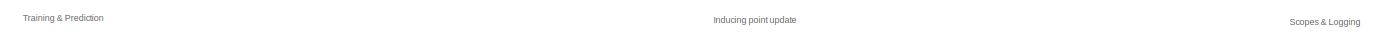
[diagram: root canvas - part 1/4, top center region]
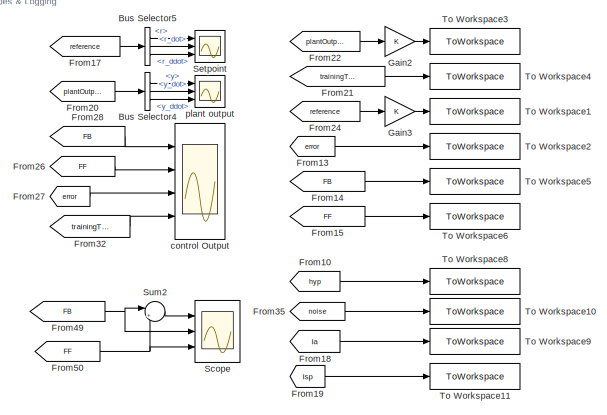
[diagram: root canvas - part 2/4, top right region]
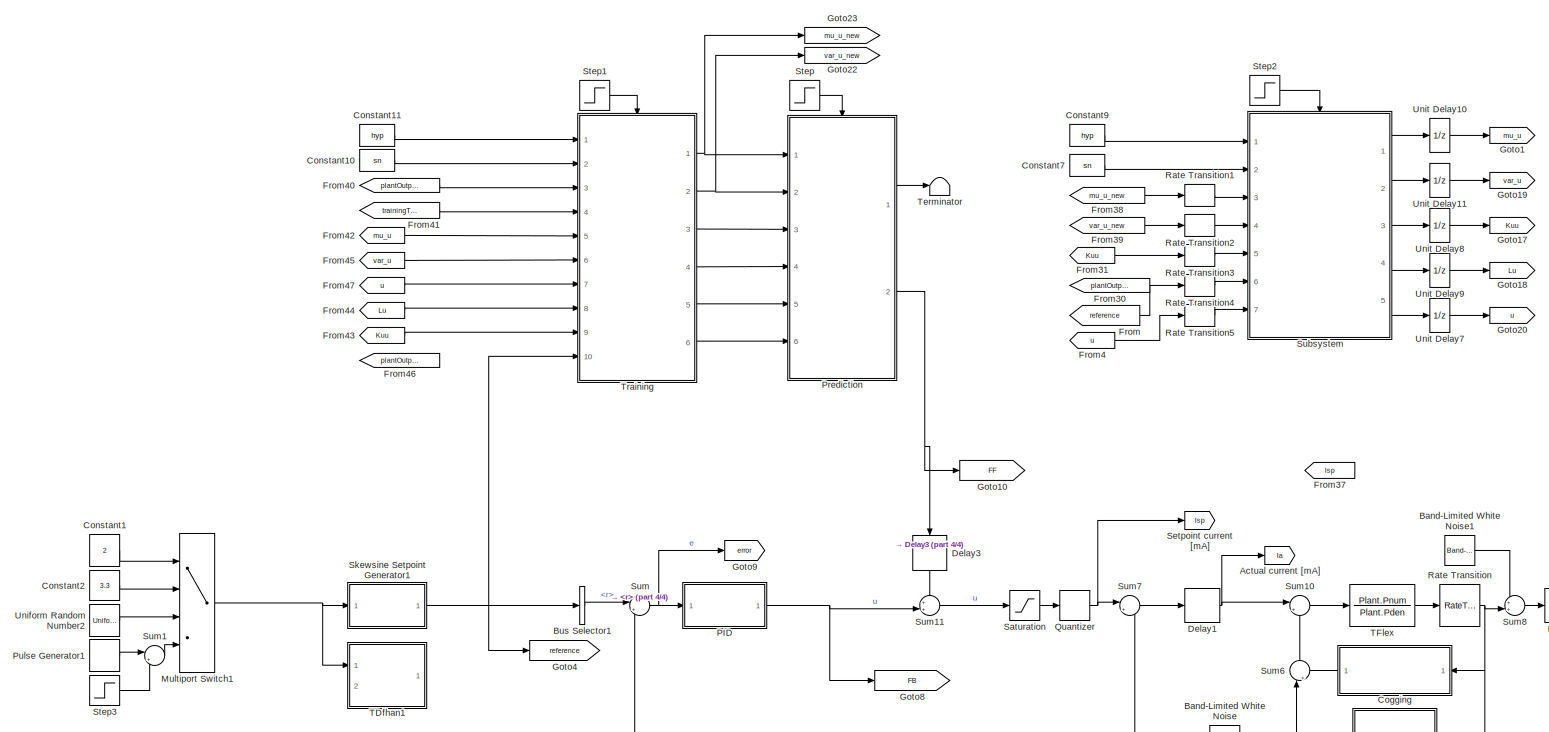
[diagram: root canvas - part 3/4, center side, full height]
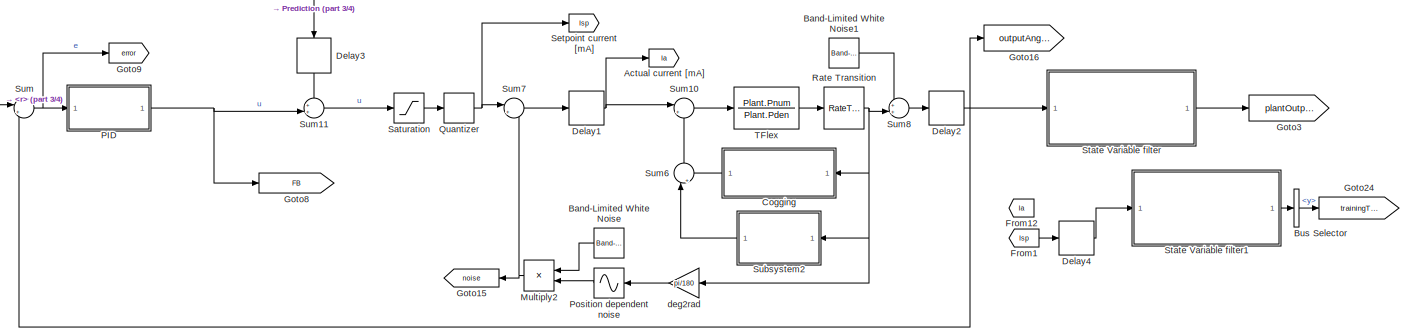
[diagram: root canvas - part 4/4, bottom center region]
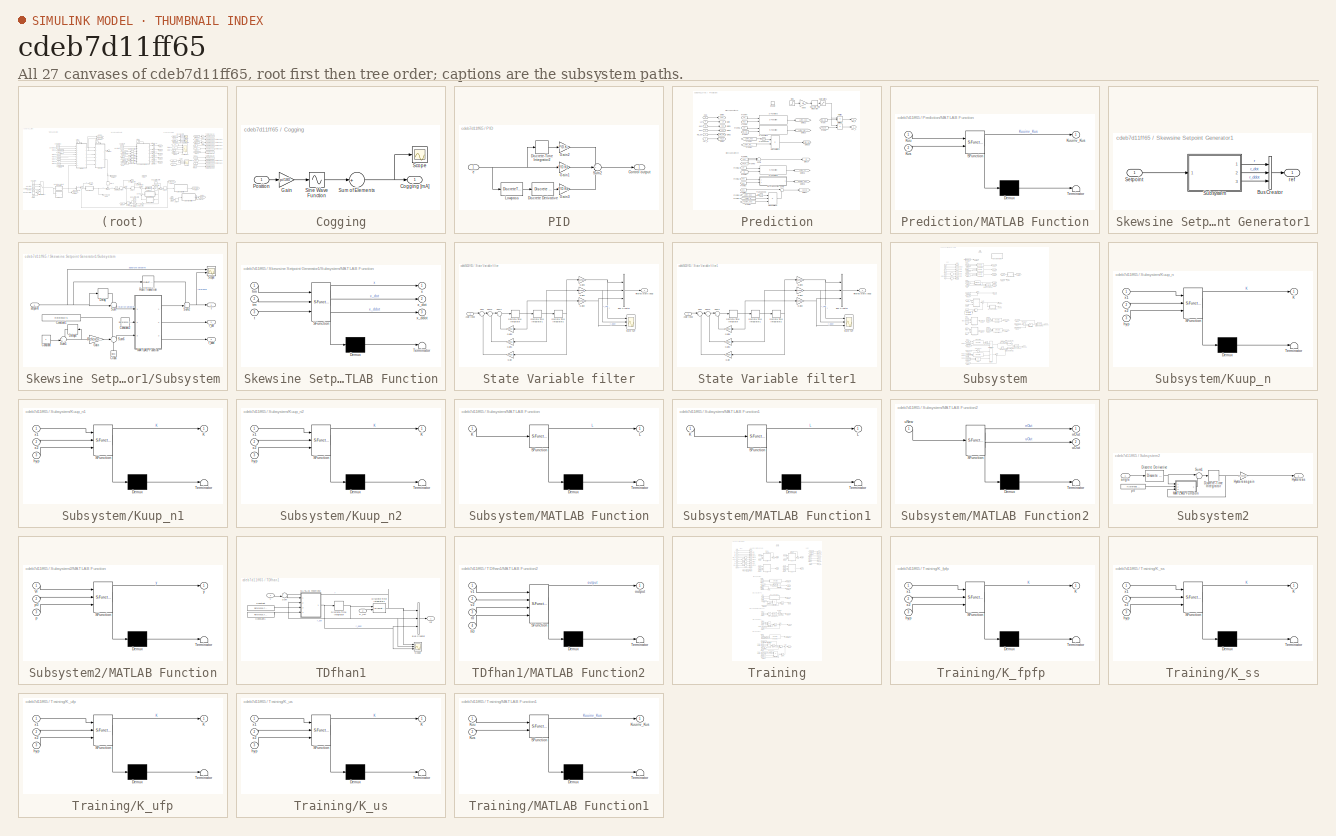
[diagram: thumbnail index - all 27 canvases of the model, root first then tree order]
MODEL slx_cdeb7d11ff65
KIND model
CONFIG AbsTol = auto
CONFIG EnableMultiTasking = off
CONFIG FixedStep = auto
CONFIG MaxStep = auto
CONFIG MinStep = auto
CONFIG RelTol = 1e-3
CONFIG SampleTimeConstraint = Unconstrained
CONFIG Solver = VariableStepAuto
CONFIG SolverName = VariableStepAuto
CONFIG StartTime = 0.0
CONFIG StopTime = t_end
BLOCK [Goto] Actual current [mA]
  GotoTag = Ia
BLOCK [Reference] Band-Limited White Noise  REF=simulink/Sources/Band-Limited
White Noise
  Ports = [0, 1]
  SourceBlock = simulink/Sources/Band-Limited\nWhite Noise
  SourceProductBaseCode = SL
  SourceProductName = Simulink
  SourceType = Band-Limited White Noise.
BLOCK [Reference] Band-Limited White Noise1  REF=simulink/Sources/Band-Limited
White Noise
  Ports = [0, 1]
  SourceBlock = simulink/Sources/Band-Limited\nWhite Noise
  SourceProductBaseCode = SL
  SourceProductName = Simulink
  SourceType = Band-Limited White Noise.
BLOCK [BusSelector] Bus Selector
  OutputAsBus = off
  OutputSignals = y
  Ports = [1, 1]
BLOCK [BusSelector] Bus Selector1
  OutputAsBus = off
  OutputSignals = r
  Ports = [1, 1]
BLOCK [BusSelector] Bus Selector4
  OutputAsBus = off
  OutputSignals = y,y_dot,y_ddot
  Ports = [1, 3]
BLOCK [BusSelector] Bus Selector5
  OutputAsBus = off
  OutputSignals = r,r_dot,r_ddot
  Ports = [1, 3]
BLOCK [SubSystem] Cogging
  Ports = [1, 1]
  RequestExecContextInheritance = off
BLOCK [Outport] Cogging/Cogging [mA]
  IconDisplay = Port number
BLOCK [Gain] Cogging/Gain
  Gain = pi/180
  OutDataTypeStr = Inherit: Inherit via internal rule
  ParamDataTypeStr = Inherit: Inherit via internal rule
  SaturateOnIntegerOverflow = off
BLOCK [Inport] Cogging/Position
  IconDisplay = Port number
BLOCK [Scope] Cogging/Scope
  Floating = off
  NumInputPorts = 1
  Ports = [1]
  ScopeSpecificationString = Simulink.scopes.TimeScopeBlockCfg('CurrentConfiguration', extmgr.ConfigurationSet(extmgr.Configuration('Core','General UI',true),extmgr.Configuration('Core','Source UI',true),extmgr.Configuration('Sources','WiredSimulink',true,'DataLoggingVariableName','ScopeData2'),extmgr.Configuration('Visuals','Time Domain',true,'SerializedDisplays',{struct('MinYLimReal','-29.47547','MaxYLimReal','29.47547','YL...<+1399ch>
BLOCK [Sin] Cogging/Sine Wave Function
  Amplitude = Cogging.amplitude
  Frequency = Cogging.frequency*pi
  Phase = Cogging.phase
  Ports = [1, 1]
  SampleTime = 0
  TimeSource = Use external signal
BLOCK [Sum] Cogging/Sum of Elements
  InputSameDT = off
  Inputs = +
  OutDataTypeStr = Inherit: Inherit via internal rule
  Ports = [1, 1]
  SaturateOnIntegerOverflow = off
BLOCK [Constant] Constant1
  SampleTime = Reference.ts
  Value = 2
BLOCK [Constant] Constant10
  SampleTime = -1
  Value = sn
BLOCK [Constant] Constant11
  SampleTime = -1
  Value = hyp
BLOCK [Constant] Constant2
  SampleTime = Reference.ts
  Value = 3.3
BLOCK [Constant] Constant7
  SampleTime = -1
  Value = sn
BLOCK [Constant] Constant9
  SampleTime = -1
  Value = hyp
BLOCK [Delay] Delay1
  DelayLength = 1
  InitialCondition = 0
  InputPortMap = u0
  Ports = [1, 1]
BLOCK [Delay] Delay2
  DelayLength = 1
  InitialCondition = 0
  InputPortMap = u0
  Ports = [1, 1]
BLOCK [Delay] Delay3
  Commented = through
  DelayLength = 3
  InitialCondition = 0
  InputPortMap = u0
  Ports = [1, 1]
BLOCK [Delay] Delay4
  InitialCondition = 0
  InputPortMap = u0
  Ports = [1, 1]
BLOCK [From] From
  GotoTag = reference
BLOCK [From] From1
  GotoTag = Isp
BLOCK [From] From10
  GotoTag = hyp
BLOCK [From] From12
  GotoTag = Ia
BLOCK [From] From13
  GotoTag = error
BLOCK [From] From14
  GotoTag = FB
BLOCK [From] From15
  GotoTag = FF
BLOCK [From] From17
  GotoTag = reference
BLOCK [From] From18
  GotoTag = Ia
BLOCK [From] From19
  GotoTag = Isp
BLOCK [From] From20
  GotoTag = plantOutput
BLOCK [From] From21
  GotoTag = trainingTarget
BLOCK [From] From22
  GotoTag = plantOutput
BLOCK [From] From24
  GotoTag = reference
BLOCK [From] From26
  GotoTag = FF
BLOCK [From] From27
  GotoTag = error
BLOCK [From] From28
  GotoTag = FB
BLOCK [From] From30
  GotoTag = plantOutput
BLOCK [From] From31
  GotoTag = Kuu
BLOCK [From] From32
  GotoTag = trainingTarget
BLOCK [From] From35
  GotoTag = noise
BLOCK [From] From37
  GotoTag = Isp
BLOCK [From] From38
  GotoTag = mu_u_new
BLOCK [From] From39
  GotoTag = var_u_new
BLOCK [From] From4
  GotoTag = u
BLOCK [From] From40
  GotoTag = plantOutput
BLOCK [From] From41
  GotoTag = trainingTarget
BLOCK [From] From42
  GotoTag = mu_u
BLOCK [From] From43
  GotoTag = Kuu
BLOCK [From] From44
  GotoTag = Lu
BLOCK [From] From45
  GotoTag = var_u
BLOCK [From] From46
  GotoTag = plantOutput
BLOCK [From] From47
  GotoTag = u
BLOCK [From] From49
  GotoTag = FB
BLOCK [From] From50
  GotoTag = FF
BLOCK [Gain] Gain2
  OutDataTypeStr = Inherit: Inherit via internal rule
  ParamDataTypeStr = Inherit: Inherit via internal rule
  SaturateOnIntegerOverflow = off
BLOCK [Gain] Gain3
  OutDataTypeStr = Inherit: Inherit via internal rule
  ParamDataTypeStr = Inherit: Inherit via internal rule
  SaturateOnIntegerOverflow = off
BLOCK [Goto] Goto1
  GotoTag = mu_u
BLOCK [Goto] Goto10
  GotoTag = FF
BLOCK [Goto] Goto15
  GotoTag = noise
BLOCK [Goto] Goto16
  GotoTag = outputAngle
BLOCK [Goto] Goto17
  GotoTag = Kuu
BLOCK [Goto] Goto18
  GotoTag = Lu
BLOCK [Goto] Goto19
  GotoTag = var_u
BLOCK [Goto] Goto20
  GotoTag = u
BLOCK [Goto] Goto22
  GotoTag = var_u_new
BLOCK [Goto] Goto23
  GotoTag = mu_u_new
BLOCK [Goto] Goto24
  GotoTag = trainingTarget
BLOCK [Goto] Goto3
  GotoTag = plantOutput
BLOCK [Goto] Goto4
  GotoTag = reference
BLOCK [Goto] Goto8
  GotoTag = FB
BLOCK [Goto] Goto9
  GotoTag = error
BLOCK [Product] Multiply2
  InputSameDT = off
  OutDataTypeStr = Inherit: Inherit via internal rule
  Ports = [2, 1]
  RndMeth = Floor
  SaturateOnIntegerOverflow = off
BLOCK [MultiPortSwitch] Multiport Switch1
  InputSameDT = off
  Ports = [4, 1]
  SaturateOnIntegerOverflow = off
BLOCK [SubSystem] PID
  Ports = [1, 1]
  RequestExecContextInheritance = off
BLOCK [Outport] PID/Control output
  IconDisplay = Port number
BLOCK [Reference] PID/Discrete Derivative  REF=simulink/Discrete/Discrete Derivative
  Ports = [1, 1]
  SourceBlock = simulink/Discrete/Discrete Derivative
  SourceProductBaseCode = SL
  SourceProductName = Simulink
  SourceType = Discrete Derivative
BLOCK [DiscreteIntegrator] PID/Discrete-Time Integrator2
  ICPrevOutput = DiscIntNeverNeededParam
  ICPrevScaledInput = DiscIntNeverNeededParam
  InitialConditionSetting = Auto
  Ports = [1, 1]
  SampleTime = -1
BLOCK [Gain] PID/Gain1
  Gain = PID.Kp
  OutDataTypeStr = Inherit: Inherit via internal rule
  ParamDataTypeStr = Inherit: Inherit via internal rule
  SaturateOnIntegerOverflow = off
BLOCK [Gain] PID/Gain2
  Gain = PID.Ki
  OutDataTypeStr = Inherit: Inherit via internal rule
  ParamDataTypeStr = Inherit: Inherit via internal rule
  SaturateOnIntegerOverflow = off
BLOCK [Gain] PID/Gain3
  Gain = PID.Kd
  OutDataTypeStr = Inherit: Inherit via internal rule
  ParamDataTypeStr = Inherit: Inherit via internal rule
  SaturateOnIntegerOverflow = off
BLOCK [DiscreteTransferFcn] PID/Lowpass
  Denominator = PID.LPden
  InputPortMap = u0
  Numerator = PID.LPnum
  Ports = [1, 1]
  SampleTime = ts
BLOCK [Sum] PID/Sum2
  IconShape = round
  InputSameDT = off
  Inputs = 3
  OutDataTypeStr = Inherit: Inherit via internal rule
  Ports = [3, 1]
  SaturateOnIntegerOverflow = off
BLOCK [Inport] PID/e
  IconDisplay = Port number
BLOCK [Sin] Position dependent noise
  Bias = 2
  Frequency = 27.7
  Ports = [1, 1]
  SampleTime = 0
  TimeSource = Use external signal
BLOCK [SubSystem] Prediction
  Ports = [6, 2, 1]
  RequestExecContextInheritance = off
BLOCK [DiscreteIntegrator] Prediction/Discrete-Time Integrator
  ICPrevOutput = DiscIntNeverNeededParam
  ICPrevScaledInput = DiscIntNeverNeededParam
  InitialConditionSetting = Auto
  Ports = [1, 1]
  SampleTime = -1
BLOCK [EnablePort] Prediction/Enable
  Ports = []
BLOCK [From] Prediction/From
  GotoTag = mu_sp
BLOCK [From] Prediction/From1
  GotoTag = var_sp
BLOCK [From] Prediction/From44
  GotoTag = Lu
BLOCK [From] Prediction/From45
  GotoTag = Lu
BLOCK [From] Prediction/From46
  GotoTag = Kus
BLOCK [From] Prediction/From47
  GotoTag = mu_up
BLOCK [From] Prediction/From48
  GotoTag = Kuu
BLOCK [From] Prediction/From49
  GotoTag = var_u
BLOCK [From] Prediction/From50
  GotoTag = Lu
BLOCK [From] Prediction/From51
  GotoTag = D
BLOCK [From] Prediction/From52
  GotoTag = Kuu
BLOCK [From] Prediction/From53
  GotoTag = Kus
BLOCK [From] Prediction/From54
  GotoTag = Kss
BLOCK [From] Prediction/From55
  GotoTag = Luinv_Kus
BLOCK [From] Prediction/From56
  GotoTag = Luinv_D
BLOCK [From] Prediction/From57
  GotoTag = Kuuinv_Kus
BLOCK [From] Prediction/From61
  GotoTag = Luinv_Kus
BLOCK [From] Prediction/From62
  GotoTag = Luinv_mu_up
BLOCK [Goto] Prediction/Goto
  GotoTag = Lu
BLOCK [Goto] Prediction/Goto1
  GotoTag = Kus
BLOCK [Goto] Prediction/Goto2
  GotoTag = mu_up
BLOCK [Goto] Prediction/Goto22
  GotoTag = Luinv_Kus
BLOCK [Goto] Prediction/Goto23
  GotoTag = Luinv_mu_up
BLOCK [Goto] Prediction/Goto24
  GotoTag = D
BLOCK [Goto] Prediction/Goto25
  GotoTag = Luinv_D
BLOCK [Goto] Prediction/Goto26
  GotoTag = Kuuinv_Kus
BLOCK [Goto] Prediction/Goto27
  GotoTag = var_sp
BLOCK [Goto] Prediction/Goto28
  GotoTag = mu_sp
BLOCK [Goto] Prediction/Goto4
  GotoTag = Kss
BLOCK [Goto] Prediction/Goto5
  GotoTag = Kuu
BLOCK [Goto] Prediction/Goto6
  GotoTag = var_u
BLOCK [Inport] Prediction/Kss
  IconDisplay = Port number
  Port = 6
BLOCK [Inport] Prediction/Kus
  IconDisplay = Port number
  Port = 5
BLOCK [Inport] Prediction/Kuu
  IconDisplay = Port number
  Port = 3
BLOCK [Inport] Prediction/Lu
  IconDisplay = Port number
  Port = 4
BLOCK [SubSystem] Prediction/MATLAB Function
  ErrorFcn = Stateflow.Translate.translate
  PermitHierarchicalResolution = ExplicitOnly
  Ports = [2, 1]
  RequestExecContextInheritance = off
  SFBlockType = MATLAB Function
  TreatAsAtomicUnit = on
BLOCK [Demux] Prediction/MATLAB Function/ Demux 
  Outputs = 1
  Ports = [1, 1]
BLOCK [S-Function] Prediction/MATLAB Function/ SFunction 
  EnableBusSupport = on
  FunctionName = sf_sfun
  PortCounts = [2 2]
  Ports = [2, 2]
  SFcnIsStateOwnerBlock = off
  SFunctionDeploymentMode = off
  Tag = Stateflow S-Function TFlex_IFITCv2 3
BLOCK [Terminator] Prediction/MATLAB Function/ Terminator 
BLOCK [Inport] Prediction/MATLAB Function/Kus
  IconDisplay = Port number
  Port = 2
BLOCK [Inport] Prediction/MATLAB Function/Kuu
  IconDisplay = Port number
BLOCK [Outport] Prediction/MATLAB Function/Kuuinv_Kus
  IconDisplay = Port number
BLOCK [Product] Prediction/Matrix Multiply5
  InputSameDT = off
  Inputs = 3
  Multiplication = Matrix(*)
  OutDataTypeStr = Inherit: Inherit via internal rule
  Ports = [3, 1]
  RndMeth = Floor
  SaturateOnIntegerOverflow = off
BLOCK [Product] Prediction/Matrix Multiply6
  InputSameDT = off
  Multiplication = Matrix(*)
  OutDataTypeStr = Inherit: Inherit via internal rule
  Ports = [2, 1]
  RndMeth = Floor
  SaturateOnIntegerOverflow = off
BLOCK [Product] Prediction/Multiply
  InputSameDT = off
  OutDataTypeStr = Inherit: Inherit via internal rule
  Ports = [2, 1]
  RndMeth = Floor
  SaturateOnIntegerOverflow = off
BLOCK [Product] Prediction/Multiply1
  InputSameDT = off
  OutDataTypeStr = Inherit: Inherit via internal rule
  Ports = [2, 1]
  RndMeth = Floor
  SaturateOnIntegerOverflow = off
BLOCK [S-Function] Prediction/S-Function3
  EnableBusSupport = off
  FunctionName = solve_lowerTriangular_sfun
  Parameters = Nkeep+1
  Ports = [2, 1]
  SFcnIsStateOwnerBlock = off
  SFunctionDeploymentMode = off
BLOCK [S-Function] Prediction/S-Function4
  EnableBusSupport = off
  FunctionName = solve_lowerTriangular_sfun
  Parameters = Nkeep+1
  Ports = [2, 1]
  SFcnIsStateOwnerBlock = off
  SFunctionDeploymentMode = off
BLOCK [S-Function] Prediction/S-Function5
  EnableBusSupport = off
  FunctionName = solve_lowerTriangMatrix_sfun
  Parameters = Nkeep+1
  Ports = [2, 1]
  SFcnIsStateOwnerBlock = off
  SFunctionDeploymentMode = off
BLOCK [Saturate] Prediction/Saturation1
  InputPortMap = u0
  LowerLimit = 0
  Ports = [1, 1]
  UpperLimit = 1
BLOCK [Step] Prediction/Step
  SampleTime = 0
  Time = t_predict
BLOCK [Sum] Prediction/Sum8
  IconShape = round
  InputSameDT = off
  Inputs = |+-
  OutDataTypeStr = Inherit: Inherit via internal rule
  Ports = [2, 1]
  SaturateOnIntegerOverflow = off
BLOCK [Sum] Prediction/Sum9
  IconShape = round
  InputSameDT = off
  Inputs = |+-
  OutDataTypeStr = Inherit: Inherit via internal rule
  Ports = [2, 1]
  SaturateOnIntegerOverflow = off
BLOCK [Math] Prediction/Transpose5
  Operator = transpose
  Ports = [1, 1]
BLOCK [Math] Prediction/Transpose6
  Operator = transpose
  Ports = [1, 1]
BLOCK [Outport] Prediction/mu_s
  IconDisplay = Port number
  Port = 2
BLOCK [Inport] Prediction/mu_up
  IconDisplay = Port number
BLOCK [Gain] Prediction/slope
  Gain = 1/5
  OutDataTypeStr = Inherit: Inherit via internal rule
  ParamDataTypeStr = Inherit: Inherit via internal rule
  SaturateOnIntegerOverflow = off
BLOCK [Outport] Prediction/var_s
  IconDisplay = Port number
BLOCK [Inport] Prediction/var_u
  IconDisplay = Port number
  Port = 2
BLOCK [DiscretePulseGenerator] Pulse Generator1
  Amplitude = 2*24
  Ports = [0, 1]
  SampleTime = Reference.ts
BLOCK [Quantizer] Quantizer
  QuantizationInterval = 1
BLOCK [RateTransition] Rate Transition
  OutPortSampleTime = ts
BLOCK [RateTransition] Rate Transition1
  OutPortSampleTime = 20*ts
BLOCK [RateTransition] Rate Transition2
  OutPortSampleTime = 20*ts
BLOCK [RateTransition] Rate Transition3
  OutPortSampleTime = 20*ts
BLOCK [RateTransition] Rate Transition4
  OutPortSampleTime = 20*ts
BLOCK [RateTransition] Rate Transition5
  OutPortSampleTime = 20*ts
BLOCK [Saturate] Saturation
  InputPortMap = u0
  LowerLimit = -I_limit
  Ports = [1, 1]
  UpperLimit = I_limit
BLOCK [Scope] Scope
  Floating = off
  NumInputPorts = 3
  Ports = [3]
  ScopeSpecificationString = Simulink.scopes.TimeScopeBlockCfg('CurrentConfiguration', extmgr.ConfigurationSet(extmgr.Configuration('Core','General UI',true),extmgr.Configuration('Core','Source UI',true),extmgr.Configuration('Sources','WiredSimulink',true,'DataLoggingVariableName','ScopeData1'),extmgr.Configuration('Visuals','Time Domain',true,'SerializedDisplays',{struct('MinYLimReal','-420.04539','MaxYLimReal','414.71353','...<+2812ch>
BLOCK [Scope] Setpoint
  Floating = off
  NumInputPorts = 3
  Ports = [3]
  ScopeSpecificationString = Simulink.scopes.TimeScopeBlockCfg('CurrentConfiguration', extmgr.ConfigurationSet(extmgr.Configuration('Core','General UI',true),extmgr.Configuration('Core','Source UI',true),extmgr.Configuration('Sources','WiredSimulink',true,'DataLoggingVariableName','ScopeData3','DataLoggingSaveFormat','StructureWithTime'),extmgr.Configuration('Visuals','Time Domain',true,'SerializedDisplays',{struct('MinYLimRe...<+2775ch>
BLOCK [Goto] Setpoint current [mA]
  GotoTag = Isp
BLOCK [SubSystem] Skewsine Setpoint Generator1
  Ports = [1, 1]
  RequestExecContextInheritance = off
BLOCK [BusCreator] Skewsine Setpoint Generator1/Bus Creator
  DisplayOption = bar
  InheritFromInputs = on
  Inputs = 3
  Ports = [3, 1]
BLOCK [Inport] Skewsine Setpoint Generator1/Setpoint
  IconDisplay = Port number
BLOCK [SubSystem] Skewsine Setpoint Generator1/Subsystem
  Ports = [1, 3]
  RequestExecContextInheritance = off
BLOCK [Clock] Skewsine Setpoint Generator1/Subsystem/Clock
  Decimation = 100
BLOCK [Constant] Skewsine Setpoint Generator1/Subsystem/Constant
  SampleTime = Reference.ts
BLOCK [Constant] Skewsine Setpoint Generator1/Subsystem/Constant1
  SampleTime = Reference.ts
  Value = Reference.ts
BLOCK [Constant] Skewsine Setpoint Generator1/Subsystem/Constant2
  SampleTime = Reference.ts
  Value = Reference.skewSine.tm
BLOCK [Delay] Skewsine Setpoint Generator1/Subsystem/Delay
  DelayLength = 1
  InitialCondition = 0
  InputPortMap = u0
  Ports = [1, 1]
  SampleTime = Reference.ts
BLOCK [Delay] Skewsine Setpoint Generator1/Subsystem/Delay4
  DelayLength = 1
  InitialCondition = 0
  InputPortMap = u0
  Ports = [1, 1]
  SampleTime = Reference.ts
BLOCK [Gain] Skewsine Setpoint Generator1/Subsystem/Gain
  Gain = Reference.ts
  OutDataTypeStr = Inherit: Inherit via internal rule
  ParamDataTypeStr = Inherit: Inherit via internal rule
  SaturateOnIntegerOverflow = off
BLOCK [SubSystem] Skewsine Setpoint Generator1/Subsystem/MATLAB Function
  ErrorFcn = Stateflow.Translate.translate
  PermitHierarchicalResolution = ExplicitOnly
  Ports = [3, 3]
  RequestExecContextInheritance = off
  SFBlockType = MATLAB Function
  TreatAsAtomicUnit = on
BLOCK [Demux] Skewsine Setpoint Generator1/Subsystem/MATLAB Function/ Demux 
  Outputs = 1
  Ports = [1, 1]
BLOCK [S-Function] Skewsine Setpoint Generator1/Subsystem/MATLAB Function/ SFunction 
  EnableBusSupport = on
  FunctionName = sf_sfun
  PortCounts = [3 4]
  Ports = [3, 4]
  SFcnIsStateOwnerBlock = off
  SFunctionDeploymentMode = off
  Tag = Stateflow S-Function TFlex_IFITCv2 15
BLOCK [Terminator] Skewsine Setpoint Generator1/Subsystem/MATLAB Function/ Terminator 
BLOCK [Inport] Skewsine Setpoint Generator1/Subsystem/MATLAB Function/hm
  IconDisplay = Port number
BLOCK [Inport] Skewsine Setpoint Generator1/Subsystem/MATLAB Function/t
  IconDisplay = Port number
  Port = 3
BLOCK [Inport] Skewsine Setpoint Generator1/Subsystem/MATLAB Function/tm
  IconDisplay = Port number
  Port = 2
BLOCK [Outport] Skewsine Setpoint Generator1/Subsystem/MATLAB Function/x
  IconDisplay = Port number
BLOCK [Outport] Skewsine Setpoint Generator1/Subsystem/MATLAB Function/x_ddot
  IconDisplay = Port number
  Port = 3
BLOCK [Outport] Skewsine Setpoint Generator1/Subsystem/MATLAB Function/x_dot
  IconDisplay = Port number
  Port = 2
BLOCK [RateTransition] Skewsine Setpoint Generator1/Subsystem/Rate Transition
  OutPortSampleTime = ts
BLOCK [Scope] Skewsine Setpoint Generator1/Subsystem/Scope
  Floating = off
  NumInputPorts = 2
  Ports = [2]
  ScopeSpecificationString = Simulink.scopes.TimeScopeBlockCfg('CurrentConfiguration', extmgr.ConfigurationSet(extmgr.Configuration('Core','General UI',true),extmgr.Configuration('Core','Source UI',true),extmgr.Configuration('Sources','WiredSimulink',true,'DataLoggingVariableName','ScopeData2'),extmgr.Configuration('Visuals','Time Domain',true,'SerializedDisplays',{struct('MinYLimReal','-28.49581','MaxYLimReal','28.63849','YL...<+1469ch>
BLOCK [Sum] Skewsine Setpoint Generator1/Subsystem/Sum
  IconShape = round
  InputSameDT = off
  Inputs = -+|
  OutDataTypeStr = Inherit: Inherit via internal rule
  Ports = [2, 1]
  SaturateOnIntegerOverflow = off
BLOCK [Sum] Skewsine Setpoint Generator1/Subsystem/Sum2
  IconShape = round
  InputSameDT = off
  Inputs = ++|
  OutDataTypeStr = Inherit: Inherit via internal rule
  Ports = [2, 1]
  SaturateOnIntegerOverflow = off
BLOCK [Sum] Skewsine Setpoint Generator1/Subsystem/Sum5
  IconShape = round
  InputSameDT = off
  Inputs = ++|
  OutDataTypeStr = Inherit: Inherit via internal rule
  Ports = [2, 1]
  SaturateOnIntegerOverflow = off
BLOCK [Sum] Skewsine Setpoint Generator1/Subsystem/Sum6
  IconShape = round
  InputSameDT = off
  Inputs = +-+
  OutDataTypeStr = Inherit: Inherit via internal rule
  Ports = [3, 1]
  SaturateOnIntegerOverflow = off
BLOCK [Outport] Skewsine Setpoint Generator1/Subsystem/r
  IconDisplay = Port number
BLOCK [Outport] Skewsine Setpoint Generator1/Subsystem/r_ddot
  IconDisplay = Port number
  Port = 3
BLOCK [Outport] Skewsine Setpoint Generator1/Subsystem/r_dot
  IconDisplay = Port number
  Port = 2
BLOCK [Inport] Skewsine Setpoint Generator1/Subsystem/setpoint
  IconDisplay = Port number
BLOCK [Outport] Skewsine Setpoint Generator1/ref
  IconDisplay = Port number
BLOCK [SubSystem] State Variable filter
  Ports = [1, 1]
  RequestExecContextInheritance = off
BLOCK [Inport] State Variable filter/Angle [deg]
  IconDisplay = Port number
BLOCK [BusCreator] State Variable filter/Bus Creator
  DisplayOption = bar
  InheritFromInputs = on
  Inputs = 3
  Ports = [3, 1]
BLOCK [DiscreteIntegrator] State Variable filter/Discrete-Time Integrator
  ICPrevOutput = DiscIntNeverNeededParam
  ICPrevScaledInput = DiscIntNeverNeededParam
  InitialConditionSetting = Auto
  Ports = [1, 1]
  SampleTime = -1
BLOCK [DiscreteIntegrator] State Variable filter/Discrete-Time Integrator1
  ICPrevOutput = DiscIntNeverNeededParam
  ICPrevScaledInput = DiscIntNeverNeededParam
  InitialConditionSetting = Auto
  Ports = [1, 1]
  SampleTime = -1
BLOCK [DiscreteIntegrator] State Variable filter/Discrete-Time Integrator2
  ICPrevOutput = DiscIntNeverNeededParam
  ICPrevScaledInput = DiscIntNeverNeededParam
  InitialConditionSetting = Auto
  Ports = [1, 1]
  SampleTime = -1
BLOCK [Outport] State Variable filter/Filtered state [deg]
  IconDisplay = Port number
  SampleTime = ts
BLOCK [Gain] State Variable filter/Gain
  Gain = SVF.a0
  OutDataTypeStr = Inherit: Inherit via internal rule
  ParamDataTypeStr = Inherit: Inherit via internal rule
  SaturateOnIntegerOverflow = off
BLOCK [Gain] State Variable filter/Gain1
  Gain = SVF.a1
  OutDataTypeStr = Inherit: Inherit via internal rule
  ParamDataTypeStr = Inherit: Inherit via internal rule
  SaturateOnIntegerOverflow = off
BLOCK [Gain] State Variable filter/Gain2
  Gain = SVF.a0
  OutDataTypeStr = Inherit: Inherit via internal rule
  ParamDataTypeStr = Inherit: Inherit via internal rule
  SaturateOnIntegerOverflow = off
BLOCK [Gain] State Variable filter/Gain3
  Gain = SVF.a0
  OutDataTypeStr = Inherit: Inherit via internal rule
  ParamDataTypeStr = Inherit: Inherit via internal rule
  SaturateOnIntegerOverflow = off
BLOCK [Gain] State Variable filter/Gain4
  Gain = SVF.a0
  OutDataTypeStr = Inherit: Inherit via internal rule
  ParamDataTypeStr = Inherit: Inherit via internal rule
  SaturateOnIntegerOverflow = off
BLOCK [Gain] State Variable filter/Gain5
  Gain = SVF.a2
  OutDataTypeStr = Inherit: Inherit via internal rule
  ParamDataTypeStr = Inherit: Inherit via internal rule
  SaturateOnIntegerOverflow = off
BLOCK [Scope] State Variable filter/State SVF
  Floating = off
  NumInputPorts = 3
  Ports = [3]
  ScopeSpecificationString = Simulink.scopes.TimeScopeBlockCfg('CurrentConfiguration', extmgr.ConfigurationSet(extmgr.Configuration('Core','General UI',true),extmgr.Configuration('Core','Source UI',true),extmgr.Configuration('Sources','WiredSimulink',true,'DataLoggingVariableName','ScopeData2','DataLoggingSaveFormat','StructureWithTime'),extmgr.Configuration('Visuals','Time Domain',true,'SerializedDisplays',{struct('MinYLimRe...<+2766ch>
BLOCK [Sum] State Variable filter/Sum
  IconShape = round
  InputSameDT = off
  Inputs = |+-
  OutDataTypeStr = Inherit: Inherit via internal rule
  Ports = [2, 1]
  SaturateOnIntegerOverflow = off
BLOCK [Sum] State Variable filter/Sum1
  IconShape = round
  InputSameDT = off
  Inputs = |+-
  OutDataTypeStr = Inherit: Inherit via internal rule
  Ports = [2, 1]
  SaturateOnIntegerOverflow = off
BLOCK [Sum] State Variable filter/Sum5
  IconShape = round
  InputSameDT = off
  Inputs = |+-
  OutDataTypeStr = Inherit: Inherit via internal rule
  Ports = [2, 1]
  SaturateOnIntegerOverflow = off
BLOCK [SubSystem] State Variable filter1
  Ports = [1, 1]
  RequestExecContextInheritance = off
BLOCK [Inport] State Variable filter1/Angle [deg]
  IconDisplay = Port number
BLOCK [BusCreator] State Variable filter1/Bus Creator
  DisplayOption = bar
  InheritFromInputs = on
  Inputs = 3
  Ports = [3, 1]
BLOCK [DiscreteIntegrator] State Variable filter1/Discrete-Time Integrator
  ICPrevOutput = DiscIntNeverNeededParam
  ICPrevScaledInput = DiscIntNeverNeededParam
  InitialConditionSetting = Auto
  Ports = [1, 1]
  SampleTime = -1
BLOCK [DiscreteIntegrator] State Variable filter1/Discrete-Time Integrator1
  ICPrevOutput = DiscIntNeverNeededParam
  ICPrevScaledInput = DiscIntNeverNeededParam
  InitialConditionSetting = Auto
  Ports = [1, 1]
  SampleTime = -1
BLOCK [DiscreteIntegrator] State Variable filter1/Discrete-Time Integrator2
  ICPrevOutput = DiscIntNeverNeededParam
  ICPrevScaledInput = DiscIntNeverNeededParam
  InitialConditionSetting = Auto
  Ports = [1, 1]
  SampleTime = -1
BLOCK [Outport] State Variable filter1/Filtered state [deg]
  IconDisplay = Port number
  SampleTime = ts
BLOCK [Gain] State Variable filter1/Gain
  Gain = SVF.a0
  OutDataTypeStr = Inherit: Inherit via internal rule
  ParamDataTypeStr = Inherit: Inherit via internal rule
  SaturateOnIntegerOverflow = off
BLOCK [Gain] State Variable filter1/Gain1
  Gain = SVF.a1
  OutDataTypeStr = Inherit: Inherit via internal rule
  ParamDataTypeStr = Inherit: Inherit via internal rule
  SaturateOnIntegerOverflow = off
BLOCK [Gain] State Variable filter1/Gain2
  Gain = SVF.a0
  OutDataTypeStr = Inherit: Inherit via internal rule
  ParamDataTypeStr = Inherit: Inherit via internal rule
  SaturateOnIntegerOverflow = off
BLOCK [Gain] State Variable filter1/Gain3
  Gain = SVF.a0
  OutDataTypeStr = Inherit: Inherit via internal rule
  ParamDataTypeStr = Inherit: Inherit via internal rule
  SaturateOnIntegerOverflow = off
BLOCK [Gain] State Variable filter1/Gain4
  Gain = SVF.a0
  OutDataTypeStr = Inherit: Inherit via internal rule
  ParamDataTypeStr = Inherit: Inherit via internal rule
  SaturateOnIntegerOverflow = off
BLOCK [Gain] State Variable filter1/Gain5
  Gain = SVF.a2
  OutDataTypeStr = Inherit: Inherit via internal rule
  ParamDataTypeStr = Inherit: Inherit via internal rule
  SaturateOnIntegerOverflow = off
BLOCK [Scope] State Variable filter1/State SVF
  Floating = off
  NumInputPorts = 3
  Ports = [3]
  ScopeSpecificationString = Simulink.scopes.TimeScopeBlockCfg('CurrentConfiguration', extmgr.ConfigurationSet(extmgr.Configuration('Core','General UI',true),extmgr.Configuration('Core','Source UI',true),extmgr.Configuration('Sources','WiredSimulink',true,'DataLoggingVariableName','ScopeData2','DataLoggingSaveFormat','StructureWithTime'),extmgr.Configuration('Visuals','Time Domain',true,'SerializedDisplays',{struct('MinYLimRe...<+2766ch>
BLOCK [Sum] State Variable filter1/Sum
  IconShape = round
  InputSameDT = off
  Inputs = |+-
  OutDataTypeStr = Inherit: Inherit via internal rule
  Ports = [2, 1]
  SaturateOnIntegerOverflow = off
BLOCK [Sum] State Variable filter1/Sum1
  IconShape = round
  InputSameDT = off
  Inputs = |+-
  OutDataTypeStr = Inherit: Inherit via internal rule
  Ports = [2, 1]
  SaturateOnIntegerOverflow = off
BLOCK [Sum] State Variable filter1/Sum5
  IconShape = round
  InputSameDT = off
  Inputs = |+-
  OutDataTypeStr = Inherit: Inherit via internal rule
  Ports = [2, 1]
  SaturateOnIntegerOverflow = off
BLOCK [Step] Step
  SampleTime = ts
  Time = t_predict
BLOCK [Step] Step1
  SampleTime = ts
  Time = t_learn
BLOCK [Step] Step2
  SampleTime = ts
  Time = t_learn
BLOCK [Step] Step3
  After = -24
  SampleTime = Reference.ts
  Time = 0
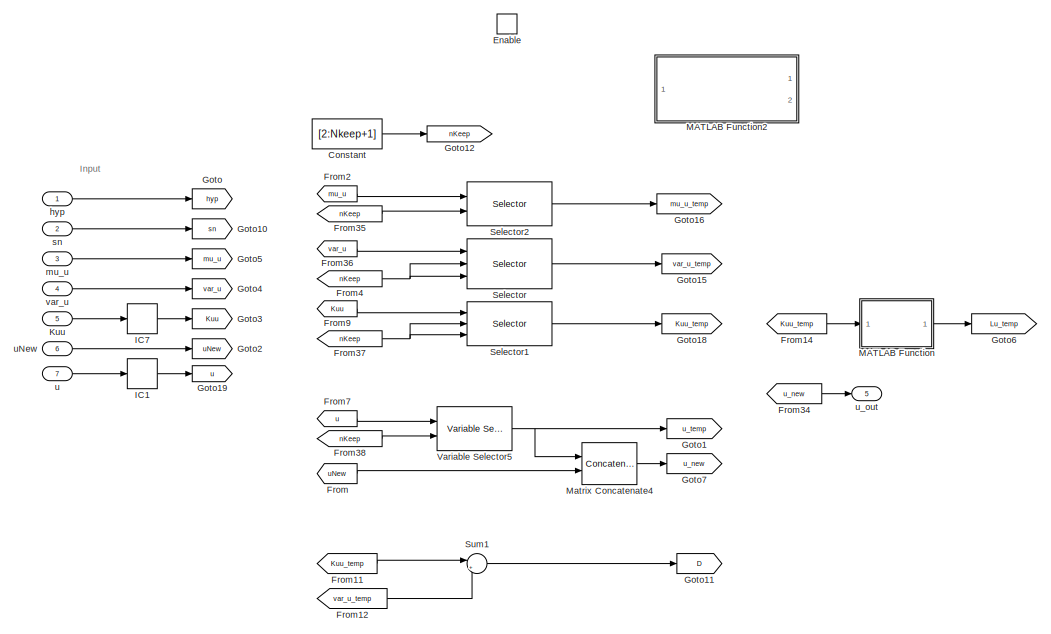
[diagram: Subsystem - part 1/2, full width, top band]
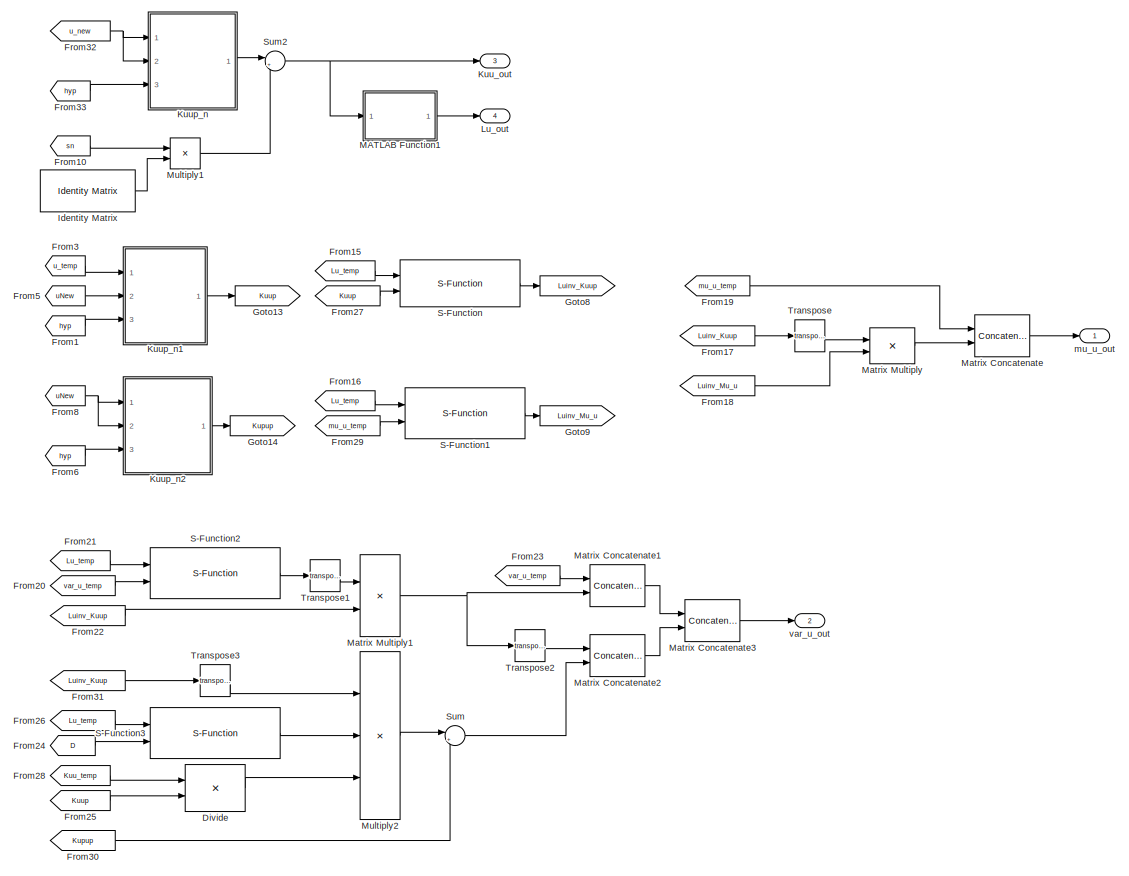
[diagram: Subsystem - part 2/2, full width, bottom band]
BLOCK [SubSystem] Subsystem
  Ports = [7, 5, 1]
  RequestExecContextInheritance = off
BLOCK [Constant] Subsystem/Constant
  Value = [2:Nkeep+1]
BLOCK [Product] Subsystem/Divide
  InputSameDT = off
  Inputs = /*
  Multiplication = Matrix(*)
  OutDataTypeStr = Inherit: Inherit via internal rule
  Ports = [2, 1]
  RndMeth = Floor
  SaturateOnIntegerOverflow = off
BLOCK [EnablePort] Subsystem/Enable
  Ports = []
BLOCK [From] Subsystem/From
  GotoTag = uNew
BLOCK [From] Subsystem/From1
  GotoTag = hyp
BLOCK [From] Subsystem/From10
  GotoTag = sn
BLOCK [From] Subsystem/From11
  GotoTag = Kuu_temp
BLOCK [From] Subsystem/From12
  GotoTag = var_u_temp
BLOCK [From] Subsystem/From14
  GotoTag = Kuu_temp
BLOCK [From] Subsystem/From15
  GotoTag = Lu_temp
BLOCK [From] Subsystem/From16
  GotoTag = Lu_temp
BLOCK [From] Subsystem/From17
  GotoTag = Luinv_Kuup
BLOCK [From] Subsystem/From18
  GotoTag = Luinv_Mu_u
BLOCK [From] Subsystem/From19
  GotoTag = mu_u_temp
BLOCK [From] Subsystem/From2
  GotoTag = mu_u
BLOCK [From] Subsystem/From20
  GotoTag = var_u_temp
BLOCK [From] Subsystem/From21
  GotoTag = Lu_temp
BLOCK [From] Subsystem/From22
  GotoTag = Luinv_Kuup
BLOCK [From] Subsystem/From23
  GotoTag = var_u_temp
BLOCK [From] Subsystem/From24
  GotoTag = D
BLOCK [From] Subsystem/From25
  GotoTag = Kuup
BLOCK [From] Subsystem/From26
  GotoTag = Lu_temp
BLOCK [From] Subsystem/From27
  GotoTag = Kuup
BLOCK [From] Subsystem/From28
  GotoTag = Kuu_temp
BLOCK [From] Subsystem/From29
  GotoTag = mu_u_temp
BLOCK [From] Subsystem/From3
  GotoTag = u_temp
BLOCK [From] Subsystem/From30
  GotoTag = Kupup
BLOCK [From] Subsystem/From31
  GotoTag = Luinv_Kuup
BLOCK [From] Subsystem/From32
  GotoTag = u_new
BLOCK [From] Subsystem/From33
  GotoTag = hyp
BLOCK [From] Subsystem/From34
  GotoTag = u_new
BLOCK [From] Subsystem/From35
  GotoTag = nKeep
BLOCK [From] Subsystem/From36
  GotoTag = var_u
BLOCK [From] Subsystem/From37
  GotoTag = nKeep
BLOCK [From] Subsystem/From38
  GotoTag = nKeep
BLOCK [From] Subsystem/From4
  GotoTag = nKeep
BLOCK [From] Subsystem/From5
  GotoTag = uNew
BLOCK [From] Subsystem/From6
  GotoTag = hyp
BLOCK [From] Subsystem/From7
  GotoTag = u
BLOCK [From] Subsystem/From8
  GotoTag = uNew
BLOCK [From] Subsystem/From9
  GotoTag = Kuu
BLOCK [Goto] Subsystem/Goto
  GotoTag = hyp
BLOCK [Goto] Subsystem/Goto1
  GotoTag = u_temp
BLOCK [Goto] Subsystem/Goto10
  GotoTag = sn
BLOCK [Goto] Subsystem/Goto11
  GotoTag = D
BLOCK [Goto] Subsystem/Goto12
  GotoTag = nKeep
BLOCK [Goto] Subsystem/Goto13
  GotoTag = Kuup
BLOCK [Goto] Subsystem/Goto14
  GotoTag = Kupup
BLOCK [Goto] Subsystem/Goto15
  GotoTag = var_u_temp
BLOCK [Goto] Subsystem/Goto16
  GotoTag = mu_u_temp
BLOCK [Goto] Subsystem/Goto18
  GotoTag = Kuu_temp
BLOCK [Goto] Subsystem/Goto19
  GotoTag = u
BLOCK [Goto] Subsystem/Goto2
  GotoTag = uNew
BLOCK [Goto] Subsystem/Goto3
  GotoTag = Kuu
BLOCK [Goto] Subsystem/Goto4
  GotoTag = var_u
BLOCK [Goto] Subsystem/Goto5
  GotoTag = mu_u
BLOCK [Goto] Subsystem/Goto6
  GotoTag = Lu_temp
BLOCK [Goto] Subsystem/Goto7
  GotoTag = u_new
BLOCK [Goto] Subsystem/Goto8
  GotoTag = Luinv_Kuup
BLOCK [Goto] Subsystem/Goto9
  GotoTag = Luinv_Mu_u
BLOCK [InitialCondition] Subsystem/IC1
  Value = u
BLOCK [InitialCondition] Subsystem/IC7
  Value = Kuu
BLOCK [Reference] Subsystem/Identity Matrix  REF=dspmtrx3/Identity Matrix
  Ports = [0, 1]
  SourceBlock = dspmtrx3/Identity Matrix
  SourceProductBaseCode = DS
  SourceProductName = DSP System Toolbox
  SourceType = Identity Matrix
BLOCK [Inport] Subsystem/Kuu
  IconDisplay = Port number
  Port = 5
BLOCK [Outport] Subsystem/Kuu_out
  IconDisplay = Port number
  Port = 3
BLOCK [SubSystem] Subsystem/Kuup_n
  ErrorFcn = Stateflow.Translate.translate
  PermitHierarchicalResolution = ExplicitOnly
  Ports = [3, 1]
  RequestExecContextInheritance = off
  SFBlockType = MATLAB Function
  TreatAsAtomicUnit = on
BLOCK [Demux] Subsystem/Kuup_n/ Demux 
  Outputs = 1
  Ports = [1, 1]
BLOCK [S-Function] Subsystem/Kuup_n/ SFunction 
  EnableBusSupport = on
  FunctionName = sf_sfun
  PortCounts = [3 2]
  Ports = [3, 2]
  SFcnIsStateOwnerBlock = off
  SFunctionDeploymentMode = off
  Tag = Stateflow S-Function TFlex_IFITCv2 9
BLOCK [Terminator] Subsystem/Kuup_n/ Terminator 
BLOCK [Outport] Subsystem/Kuup_n/K
  IconDisplay = Port number
BLOCK [Inport] Subsystem/Kuup_n/hyp
  IconDisplay = Port number
  Port = 3
BLOCK [Inport] Subsystem/Kuup_n/x1
  IconDisplay = Port number
BLOCK [Inport] Subsystem/Kuup_n/x2
  IconDisplay = Port number
  Port = 2
BLOCK [SubSystem] Subsystem/Kuup_n1
  ErrorFcn = Stateflow.Translate.translate
  PermitHierarchicalResolution = ExplicitOnly
  Ports = [3, 1]
  RequestExecContextInheritance = off
  SFBlockType = MATLAB Function
  TreatAsAtomicUnit = on
BLOCK [Demux] Subsystem/Kuup_n1/ Demux 
  Outputs = 1
  Ports = [1, 1]
BLOCK [S-Function] Subsystem/Kuup_n1/ SFunction 
  EnableBusSupport = on
  FunctionName = sf_sfun
  PortCounts = [3 2]
  Ports = [3, 2]
  SFcnIsStateOwnerBlock = off
  SFunctionDeploymentMode = off
  Tag = Stateflow S-Function TFlex_IFITCv2 1
BLOCK [Terminator] Subsystem/Kuup_n1/ Terminator 
BLOCK [Outport] Subsystem/Kuup_n1/K
  IconDisplay = Port number
BLOCK [Inport] Subsystem/Kuup_n1/hyp
  IconDisplay = Port number
  Port = 3
BLOCK [Inport] Subsystem/Kuup_n1/x1
  IconDisplay = Port number
BLOCK [Inport] Subsystem/Kuup_n1/x2
  IconDisplay = Port number
  Port = 2
BLOCK [SubSystem] Subsystem/Kuup_n2
  ErrorFcn = Stateflow.Translate.translate
  PermitHierarchicalResolution = ExplicitOnly
  Ports = [3, 1]
  RequestExecContextInheritance = off
  SFBlockType = MATLAB Function
  TreatAsAtomicUnit = on
BLOCK [Demux] Subsystem/Kuup_n2/ Demux 
  Outputs = 1
  Ports = [1, 1]
BLOCK [S-Function] Subsystem/Kuup_n2/ SFunction 
  EnableBusSupport = on
  FunctionName = sf_sfun
  PortCounts = [3 2]
  Ports = [3, 2]
  SFcnIsStateOwnerBlock = off
  SFunctionDeploymentMode = off
  Tag = Stateflow S-Function TFlex_IFITCv2 5
BLOCK [Terminator] Subsystem/Kuup_n2/ Terminator 
BLOCK [Outport] Subsystem/Kuup_n2/K
  IconDisplay = Port number
BLOCK [Inport] Subsystem/Kuup_n2/hyp
  IconDisplay = Port number
  Port = 3
BLOCK [Inport] Subsystem/Kuup_n2/x1
  IconDisplay = Port number
BLOCK [Inport] Subsystem/Kuup_n2/x2
  IconDisplay = Port number
  Port = 2
BLOCK [Outport] Subsystem/Lu_out
  IconDisplay = Port number
  Port = 4
BLOCK [SubSystem] Subsystem/MATLAB Function
  ErrorFcn = Stateflow.Translate.translate
  PermitHierarchicalResolution = ExplicitOnly
  Ports = [1, 1]
  RequestExecContextInheritance = off
  SFBlockType = MATLAB Function
  TreatAsAtomicUnit = on
BLOCK [Demux] Subsystem/MATLAB Function/ Demux 
  Outputs = 1
  Ports = [1, 1]
BLOCK [S-Function] Subsystem/MATLAB Function/ SFunction 
  EnableBusSupport = on
  FunctionName = sf_sfun
  PortCounts = [1 2]
  Ports = [1, 2]
  SFcnIsStateOwnerBlock = off
  SFunctionDeploymentMode = off
  Tag = Stateflow S-Function TFlex_IFITCv2 6
BLOCK [Terminator] Subsystem/MATLAB Function/ Terminator 
BLOCK [Inport] Subsystem/MATLAB Function/K
  IconDisplay = Port number
BLOCK [Outport] Subsystem/MATLAB Function/L
  IconDisplay = Port number
BLOCK [SubSystem] Subsystem/MATLAB Function1
  ErrorFcn = Stateflow.Translate.translate
  PermitHierarchicalResolution = ExplicitOnly
  Ports = [1, 1]
  RequestExecContextInheritance = off
  SFBlockType = MATLAB Function
  TreatAsAtomicUnit = on
BLOCK [Demux] Subsystem/MATLAB Function1/ Demux 
  Outputs = 1
  Ports = [1, 1]
BLOCK [S-Function] Subsystem/MATLAB Function1/ SFunction 
  EnableBusSupport = on
  FunctionName = sf_sfun
  PortCounts = [1 2]
  Ports = [1, 2]
  SFcnIsStateOwnerBlock = off
  SFunctionDeploymentMode = off
  Tag = Stateflow S-Function TFlex_IFITCv2 17
BLOCK [Terminator] Subsystem/MATLAB Function1/ Terminator 
BLOCK [Inport] Subsystem/MATLAB Function1/K
  IconDisplay = Port number
BLOCK [Outport] Subsystem/MATLAB Function1/L
  IconDisplay = Port number
BLOCK [SubSystem] Subsystem/MATLAB Function2
  Commented = on
  ErrorFcn = Stateflow.Translate.translate
  PermitHierarchicalResolution = ExplicitOnly
  Ports = [1, 2]
  RequestExecContextInheritance = off
  SFBlockType = MATLAB Function
  TreatAsAtomicUnit = on
BLOCK [Demux] Subsystem/MATLAB Function2/ Demux 
  Outputs = 1
  Ports = [1, 1]
BLOCK [S-Function] Subsystem/MATLAB Function2/ SFunction 
  EnableBusSupport = on
  FunctionName = sf_sfun
  Parameters = Nkeep,u_init
  PortCounts = [1 3]
  Ports = [1, 3]
  SFcnIsStateOwnerBlock = off
  SFunctionDeploymentMode = off
  Tag = Stateflow S-Function TFlex_IFITCv2 13
BLOCK [Terminator] Subsystem/MATLAB Function2/ Terminator 
BLOCK [Outport] Subsystem/MATLAB Function2/nOut
  IconDisplay = Port number
BLOCK [Inport] Subsystem/MATLAB Function2/uNew
  IconDisplay = Port number
BLOCK [Outport] Subsystem/MATLAB Function2/uOut
  IconDisplay = Port number
  Port = 2
BLOCK [Concatenate] Subsystem/Matrix Concatenate
  Mode = Multidimensional array
  Ports = [2, 1]
BLOCK [Concatenate] Subsystem/Matrix Concatenate1
  ConcatenateDimension = 2
  Mode = Multidimensional array
  Ports = [2, 1]
BLOCK [Concatenate] Subsystem/Matrix Concatenate2
  ConcatenateDimension = 2
  Mode = Multidimensional array
  Ports = [2, 1]
BLOCK [Concatenate] Subsystem/Matrix Concatenate3
  Mode = Multidimensional array
  Ports = [2, 1]
BLOCK [Concatenate] Subsystem/Matrix Concatenate4
  Mode = Multidimensional array
  Ports = [2, 1]
BLOCK [Product] Subsystem/Matrix Multiply
  InputSameDT = off
  Multiplication = Matrix(*)
  OutDataTypeStr = Inherit: Inherit via internal rule
  Ports = [2, 1]
  RndMeth = Floor
  SaturateOnIntegerOverflow = off
BLOCK [Product] Subsystem/Matrix Multiply1
  InputSameDT = off
  Multiplication = Matrix(*)
  OutDataTypeStr = Inherit: Inherit via internal rule
  Ports = [2, 1]
  RndMeth = Floor
  SaturateOnIntegerOverflow = off
BLOCK [Product] Subsystem/Multiply1
  InputSameDT = off
  OutDataTypeStr = Inherit: Inherit via internal rule
  Ports = [2, 1]
  RndMeth = Floor
  SaturateOnIntegerOverflow = off
BLOCK [Product] Subsystem/Multiply2
  InputSameDT = off
  Inputs = 3
  Multiplication = Matrix(*)
  OutDataTypeStr = Inherit: Inherit via internal rule
  Ports = [3, 1]
  RndMeth = Floor
  SaturateOnIntegerOverflow = off
BLOCK [S-Function] Subsystem/S-Function
  EnableBusSupport = off
  FunctionName = solve_lowerTriangular_sfun
  Parameters = Nkeep
  Ports = [2, 1]
  SFcnIsStateOwnerBlock = off
  SFunctionDeploymentMode = off
BLOCK [S-Function] Subsystem/S-Function1
  EnableBusSupport = off
  FunctionName = solve_lowerTriangular_sfun
  Parameters = Nkeep
  Ports = [2, 1]
  SFcnIsStateOwnerBlock = off
  SFunctionDeploymentMode = off
BLOCK [S-Function] Subsystem/S-Function2
  EnableBusSupport = off
  FunctionName = solve_lowerTriangMatrix_sfun
  Parameters = Nkeep
  Ports = [2, 1]
  SFcnIsStateOwnerBlock = off
  SFunctionDeploymentMode = off
BLOCK [S-Function] Subsystem/S-Function3
  EnableBusSupport = off
  FunctionName = solve_lowerTriangMatrix_sfun
  Parameters = Nkeep
  Ports = [2, 1]
  SFcnIsStateOwnerBlock = off
  SFunctionDeploymentMode = off
BLOCK [Selector] Subsystem/Selector
  IndexOptions = Index vector (port),Index vector (port)
  Indices = [1 3],1
  InputPortWidth = 3
  NumberOfDimensions = 2
  OutputSizes = 1,1
  Ports = [3, 1]
BLOCK [Selector] Subsystem/Selector1
  IndexOptions = Index vector (port),Index vector (port)
  Indices = [1 3],1
  InputPortWidth = 3
  NumberOfDimensions = 2
  OutputSizes = 1,1
  Ports = [3, 1]
BLOCK [Selector] Subsystem/Selector2
  IndexOptions = Index vector (port)
  Indices = [1 3]
  InputPortWidth = Nkeep+1
  OutputSizes = 1
  Ports = [2, 1]
BLOCK [Sum] Subsystem/Sum
  IconShape = round
  InputSameDT = off
  Inputs = |++
  OutDataTypeStr = Inherit: Inherit via internal rule
  Ports = [2, 1]
  SaturateOnIntegerOverflow = off
BLOCK [Sum] Subsystem/Sum1
  IconShape = round
  InputSameDT = off
  Inputs = |+-
  OutDataTypeStr = Inherit: Inherit via internal rule
  Ports = [2, 1]
  SaturateOnIntegerOverflow = off
BLOCK [Sum] Subsystem/Sum2
  IconShape = round
  InputSameDT = off
  Inputs = |++
  OutDataTypeStr = Inherit: Inherit via internal rule
  Ports = [2, 1]
  SaturateOnIntegerOverflow = off
BLOCK [Math] Subsystem/Transpose
  Operator = transpose
  Ports = [1, 1]
BLOCK [Math] Subsystem/Transpose1
  Operator = transpose
  Ports = [1, 1]
BLOCK [Math] Subsystem/Transpose2
  Operator = transpose
  Ports = [1, 1]
BLOCK [Math] Subsystem/Transpose3
  Operator = transpose
  Ports = [1, 1]
BLOCK [Reference] Subsystem/Variable Selector5  REF=dspindex/Variable
Selector
  Ports = [2, 1]
  SourceBlock = dspindex/Variable\nSelector
  SourceProductBaseCode = DS
  SourceProductName = DSP System Toolbox
  SourceType = Variable Selector
BLOCK [Inport] Subsystem/hyp
  IconDisplay = Port number
BLOCK [Inport] Subsystem/mu_u
  IconDisplay = Port number
  Port = 3
  PortDimensions = [Nkeep+1,1]
BLOCK [Outport] Subsystem/mu_u_out
  IconDisplay = Port number
BLOCK [Inport] Subsystem/sn
  IconDisplay = Port number
  Port = 2
BLOCK [Inport] Subsystem/u
  IconDisplay = Port number
  Port = 7
BLOCK [Inport] Subsystem/uNew
  IconDisplay = Port number
  Port = 6
BLOCK [Outport] Subsystem/u_out
  IconDisplay = Port number
  Port = 5
  PortDimensions = [Mu,3]
BLOCK [Inport] Subsystem/var_u
  IconDisplay = Port number
  Port = 4
BLOCK [Outport] Subsystem/var_u_out
  IconDisplay = Port number
  Port = 2
BLOCK [SubSystem] Subsystem2
  Ports = [1, 1]
  RequestExecContextInheritance = off
BLOCK [Reference] Subsystem2/Discrete Derivative  REF=simulink/Discrete/Discrete Derivative
  Ports = [1, 1]
  SourceBlock = simulink/Discrete/Discrete Derivative
  SourceProductBaseCode = SL
  SourceProductName = Simulink
  SourceType = Discrete Derivative
BLOCK [DiscreteIntegrator] Subsystem2/Discrete-Time Integrator
  ICPrevOutput = DiscIntNeverNeededParam
  ICPrevScaledInput = DiscIntNeverNeededParam
  InitialConditionSetting = Auto
  Ports = [1, 1]
  SampleTime = -1
BLOCK [Outport] Subsystem2/Hysteresis
  IconDisplay = Port number
BLOCK [Gain] Subsystem2/Hysteresis.gain
  Gain = Hysteresis.gain
  OutDataTypeStr = Inherit: Inherit via internal rule
  ParamDataTypeStr = Inherit: Inherit via internal rule
  SaturateOnIntegerOverflow = off
BLOCK [SubSystem] Subsystem2/MATLAB Function
  ErrorFcn = Stateflow.Translate.translate
  PermitHierarchicalResolution = ExplicitOnly
  Ports = [3, 1]
  RequestExecContextInheritance = off
  SFBlockType = MATLAB Function
  TreatAsAtomicUnit = on
BLOCK [Demux] Subsystem2/MATLAB Function/ Demux 
  Outputs = 1
  Ports = [1, 1]
BLOCK [S-Function] Subsystem2/MATLAB Function/ SFunction 
  EnableBusSupport = on
  FunctionName = sf_sfun
  PortCounts = [3 2]
  Ports = [3, 2]
  SFcnIsStateOwnerBlock = off
  SFunctionDeploymentMode = off
  Tag = Stateflow S-Function TFlex_IFITCv2 2
BLOCK [Terminator] Subsystem2/MATLAB Function/ Terminator 
BLOCK [Inport] Subsystem2/MATLAB Function/Vr
  IconDisplay = Port number
BLOCK [Inport] Subsystem2/MATLAB Function/p
  IconDisplay = Port number
  Port = 3
BLOCK [Inport] Subsystem2/MATLAB Function/p0
  IconDisplay = Port number
  Port = 2
BLOCK [Outport] Subsystem2/MATLAB Function/y
  IconDisplay = Port number
BLOCK [Sum] Subsystem2/Sum1
  IconShape = round
  InputSameDT = off
  Inputs = |+-
  OutDataTypeStr = Inherit: Inherit via internal rule
  Ports = [2, 1]
  SaturateOnIntegerOverflow = off
BLOCK [Inport] Subsystem2/angle
  IconDisplay = Port number
BLOCK [Constant] Subsystem2/p0
  Value = Hysteresis.p0
BLOCK [Sum] Sum
  IconShape = round
  InputSameDT = off
  Inputs = |+-
  OutDataTypeStr = Inherit: Inherit via internal rule
  Ports = [2, 1]
  SaturateOnIntegerOverflow = off
BLOCK [Sum] Sum1
  IconShape = round
  InputSameDT = off
  Inputs = |++
  OutDataTypeStr = Inherit: Inherit via internal rule
  Ports = [2, 1]
  SaturateOnIntegerOverflow = off
BLOCK [Sum] Sum10
  IconShape = round
  InputSameDT = off
  Inputs = |+-
  OutDataTypeStr = Inherit: Inherit via internal rule
  Ports = [2, 1]
  SaturateOnIntegerOverflow = off
BLOCK [Sum] Sum11
  IconShape = round
  InputSameDT = off
  Inputs = ++|
  OutDataTypeStr = Inherit: Inherit via internal rule
  Ports = [2, 1]
  SaturateOnIntegerOverflow = off
BLOCK [Sum] Sum2
  IconShape = round
  InputSameDT = off
  Inputs = |+-
  OutDataTypeStr = Inherit: Inherit via internal rule
  Ports = [2, 1]
  SaturateOnIntegerOverflow = off
BLOCK [Sum] Sum6
  IconShape = round
  InputSameDT = off
  Inputs = |++
  OutDataTypeStr = Inherit: Inherit via internal rule
  Ports = [2, 1]
  SaturateOnIntegerOverflow = off
BLOCK [Sum] Sum7
  IconShape = round
  InputSameDT = off
  Inputs = |+-
  OutDataTypeStr = Inherit: Inherit via internal rule
  Ports = [2, 1]
  SaturateOnIntegerOverflow = off
BLOCK [Sum] Sum8
  IconShape = round
  InputSameDT = off
  Inputs = ++|
  OutDataTypeStr = Inherit: Inherit via internal rule
  Ports = [2, 1]
  SaturateOnIntegerOverflow = off
BLOCK [SubSystem] TDfhan1
  Ports = [2, 1]
  RequestExecContextInheritance = off
BLOCK [BusCreator] TDfhan1/Bus Creator
  DisplayOption = bar
  InheritFromInputs = on
  Inputs = 3
  Ports = [3, 1]
BLOCK [Constant] TDfhan1/Constant
  SampleTime = ts
  Value = Reference.transient.r
BLOCK [Constant] TDfhan1/Constant1
  SampleTime = ts
  Value = Reference.transient.h
BLOCK [DiscreteIntegrator] TDfhan1/Discrete-Time Integrator
  ICPrevOutput = DiscIntNeverNeededParam
  ICPrevScaledInput = DiscIntNeverNeededParam
  InitialConditionSetting = Auto
  Ports = [1, 1]
  SampleTime = ts
  gainval = 1
BLOCK [DiscreteIntegrator] TDfhan1/Discrete-Time Integrator1
  ICPrevOutput = DiscIntNeverNeededParam
  ICPrevScaledInput = DiscIntNeverNeededParam
  InitialCondition = -24
  InitialConditionSetting = Auto
  InitialConditionSource = external
  Ports = [2, 1]
  SampleTime = ts
  gainval = 1
BLOCK [SubSystem] TDfhan1/MATLAB Function2
  ErrorFcn = Stateflow.Translate.translate
  PermitHierarchicalResolution = ExplicitOnly
  Ports = [4, 1]
  RequestExecContextInheritance = off
  SFBlockType = MATLAB Function
  TreatAsAtomicUnit = on
BLOCK [Demux] TDfhan1/MATLAB Function2/ Demux 
  Outputs = 1
  Ports = [1, 1]
BLOCK [S-Function] TDfhan1/MATLAB Function2/ SFunction 
  EnableBusSupport = on
  FunctionName = sf_sfun
  PortCounts = [4 2]
  Ports = [4, 2]
  SFcnIsStateOwnerBlock = off
  SFunctionDeploymentMode = off
  Tag = Stateflow S-Function TFlex_IFITCv2 16
BLOCK [Terminator] TDfhan1/MATLAB Function2/ Terminator 
BLOCK [Inport] TDfhan1/MATLAB Function2/h0
  IconDisplay = Port number
  Port = 4
BLOCK [Outport] TDfhan1/MATLAB Function2/output
  IconDisplay = Port number
BLOCK [Inport] TDfhan1/MATLAB Function2/r0
  IconDisplay = Port number
  Port = 3
BLOCK [Inport] TDfhan1/MATLAB Function2/v1
  IconDisplay = Port number
BLOCK [Inport] TDfhan1/MATLAB Function2/v2
  IconDisplay = Port number
  Port = 2
BLOCK [Inport] TDfhan1/P_init
  IconDisplay = Port number
  Port = 2
BLOCK [Scope] TDfhan1/Scope
  Floating = off
  NumInputPorts = 3
  Ports = [3]
  ScopeSpecificationString = Simulink.scopes.TimeScopeBlockCfg('CurrentConfiguration', extmgr.ConfigurationSet(extmgr.Configuration('Core','General UI',true),extmgr.Configuration('Core','Source UI',true),extmgr.Configuration('Sources','WiredSimulink',true,'DataLoggingVariableName','ScopeData1'),extmgr.Configuration('Visuals','Time Domain',true,'SerializedDisplays',{struct('MinYLimReal','-0.22989','MaxYLimReal','0.25408','YLab...<+2795ch>
BLOCK [Sum] TDfhan1/Sum
  IconShape = round
  InputSameDT = off
  Inputs = +-|
  OutDataTypeStr = Inherit: Inherit via internal rule
  Ports = [2, 1]
  SaturateOnIntegerOverflow = off
BLOCK [Inport] TDfhan1/V
  IconDisplay = Port number
BLOCK [Outport] TDfhan1/ref
  IconDisplay = Port number
BLOCK [TransferFcn] TFlex
  ContinuousStateAttributes = 'angle'
  Denominator = Plant.Pden
  Numerator = Plant.Pnum
BLOCK [Terminator] Terminator
BLOCK [ToWorkspace] To Workspace1
  FixptAsFi = on
  MaxDataPoints = inf
  Ports = [1]
  SampleTime = -1
  Save2DSignal = 3-D array (concatenate along third dimension)
  VariableName = reference
BLOCK [ToWorkspace] To Workspace10
  FixptAsFi = on
  MaxDataPoints = inf
  Ports = [1]
  SampleTime = -1
  Save2DSignal = 3-D array (concatenate along third dimension)
  VariableName = noise
BLOCK [ToWorkspace] To Workspace11
  FixptAsFi = on
  MaxDataPoints = inf
  Ports = [1]
  SampleTime = -1
  Save2DSignal = 3-D array (concatenate along third dimension)
  VariableName = Isp
BLOCK [ToWorkspace] To Workspace2
  FixptAsFi = on
  MaxDataPoints = inf
  Ports = [1]
  SampleTime = -1
  Save2DSignal = 3-D array (concatenate along third dimension)
  VariableName = error
BLOCK [ToWorkspace] To Workspace3
  FixptAsFi = on
  MaxDataPoints = inf
  Ports = [1]
  SampleTime = -1
  Save2DSignal = 3-D array (concatenate along third dimension)
  VariableName = xTraining
BLOCK [ToWorkspace] To Workspace4
  FixptAsFi = on
  MaxDataPoints = inf
  Ports = [1]
  SampleTime = -1
  Save2DSignal = 3-D array (concatenate along third dimension)
  VariableName = yTraining
BLOCK [ToWorkspace] To Workspace5
  FixptAsFi = on
  MaxDataPoints = inf
  Ports = [1]
  SampleTime = -1
  Save2DSignal = 3-D array (concatenate along third dimension)
  VariableName = FB
BLOCK [ToWorkspace] To Workspace6
  FixptAsFi = on
  MaxDataPoints = inf
  Ports = [1]
  SampleTime = -1
  Save2DSignal = 3-D array (concatenate along third dimension)
  VariableName = FF
BLOCK [ToWorkspace] To Workspace8
  FixptAsFi = on
  MaxDataPoints = inf
  Ports = [1]
  SampleTime = -1
  Save2DSignal = 3-D array (concatenate along third dimension)
  VariableName = hyperParam
BLOCK [ToWorkspace] To Workspace9
  FixptAsFi = on
  MaxDataPoints = inf
  Ports = [1]
  SampleTime = -1
  Save2DSignal = 3-D array (concatenate along third dimension)
  VariableName = Ia
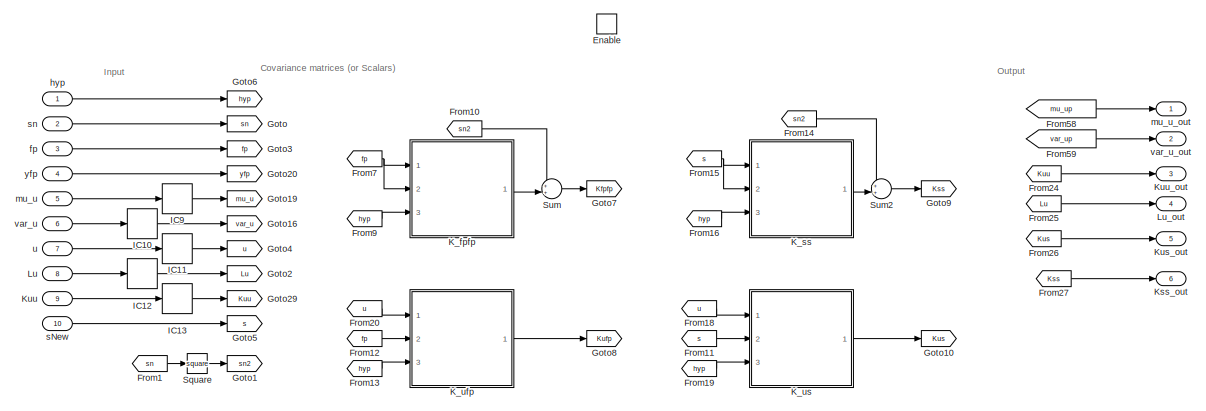
[diagram: Training - part 1/2, full width, top band]
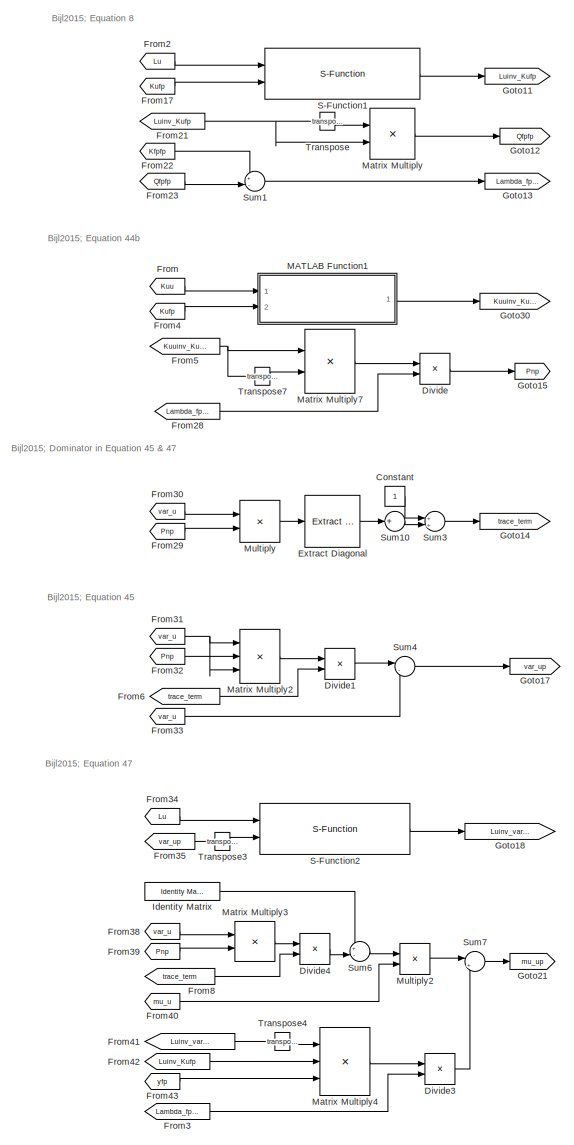
[diagram: Training - part 2/2, central region]
BLOCK [SubSystem] Training
  Ports = [10, 6, 1]
  RequestExecContextInheritance = off
BLOCK [Constant] Training/Constant
BLOCK [Product] Training/Divide
  InputSameDT = off
  Inputs = */
  OutDataTypeStr = Inherit: Inherit via internal rule
  Ports = [2, 1]
  RndMeth = Floor
  SaturateOnIntegerOverflow = off
BLOCK [Product] Training/Divide1
  InputSameDT = off
  Inputs = */
  OutDataTypeStr = Inherit: Inherit via internal rule
  Ports = [2, 1]
  RndMeth = Floor
  SaturateOnIntegerOverflow = off
BLOCK [Product] Training/Divide3
  InputSameDT = off
  Inputs = */
  OutDataTypeStr = Inherit: Inherit via internal rule
  Ports = [2, 1]
  RndMeth = Floor
  SaturateOnIntegerOverflow = off
BLOCK [Product] Training/Divide4
  InputSameDT = off
  Inputs = */
  OutDataTypeStr = Inherit: Inherit via internal rule
  Ports = [2, 1]
  RndMeth = Floor
  SaturateOnIntegerOverflow = off
BLOCK [EnablePort] Training/Enable
  Ports = []
BLOCK [Reference] Training/Extract Diagonal  REF=dspmtrx3/Extract Diagonal
  Ports = [1, 1]
  SourceBlock = dspmtrx3/Extract Diagonal
  SourceProductBaseCode = DS
  SourceProductName = DSP System Toolbox
  SourceType = Extract Diagonal
BLOCK [From] Training/From
  GotoTag = Kuu
BLOCK [From] Training/From1
  GotoTag = sn
BLOCK [From] Training/From10
  GotoTag = sn2
BLOCK [From] Training/From11
  GotoTag = s
BLOCK [From] Training/From12
  GotoTag = fp
BLOCK [From] Training/From13
  GotoTag = hyp
BLOCK [From] Training/From14
  GotoTag = sn2
BLOCK [From] Training/From15
  GotoTag = s
BLOCK [From] Training/From16
  GotoTag = hyp
BLOCK [From] Training/From17
  GotoTag = Kufp
BLOCK [From] Training/From18
  GotoTag = u
BLOCK [From] Training/From19
  GotoTag = hyp
BLOCK [From] Training/From2
  GotoTag = Lu
BLOCK [From] Training/From20
  GotoTag = u
BLOCK [From] Training/From21
  GotoTag = Luinv_Kufp
BLOCK [From] Training/From22
  GotoTag = Kfpfp
BLOCK [From] Training/From23
  GotoTag = Qfpfp
BLOCK [From] Training/From24
  GotoTag = Kuu
BLOCK [From] Training/From25
  GotoTag = Lu
BLOCK [From] Training/From26
  GotoTag = Kus
BLOCK [From] Training/From27
  GotoTag = Kss
BLOCK [From] Training/From28
  GotoTag = Lambda_fpfp
BLOCK [From] Training/From29
  GotoTag = Pnp
BLOCK [From] Training/From3
  GotoTag = Lambda_fpfp
BLOCK [From] Training/From30
  GotoTag = var_u
BLOCK [From] Training/From31
  GotoTag = var_u
BLOCK [From] Training/From32
  GotoTag = Pnp
BLOCK [From] Training/From33
  GotoTag = var_u
BLOCK [From] Training/From34
  GotoTag = Lu
BLOCK [From] Training/From35
  GotoTag = var_up
BLOCK [From] Training/From38
  GotoTag = var_u
BLOCK [From] Training/From39
  GotoTag = Pnp
BLOCK [From] Training/From4
  GotoTag = Kufp
BLOCK [From] Training/From40
  GotoTag = mu_u
BLOCK [From] Training/From41
  GotoTag = Luinv_var_upT
BLOCK [From] Training/From42
  GotoTag = Luinv_Kufp
BLOCK [From] Training/From43
  GotoTag = yfp
BLOCK [From] Training/From5
  GotoTag = Kuuinv_Kufp
BLOCK [From] Training/From58
  GotoTag = mu_up
BLOCK [From] Training/From59
  GotoTag = var_up
BLOCK [From] Training/From6
  GotoTag = trace_term
BLOCK [From] Training/From7
  GotoTag = fp
BLOCK [From] Training/From8
  GotoTag = trace_term
BLOCK [From] Training/From9
  GotoTag = hyp
BLOCK [Goto] Training/Goto
  GotoTag = sn
BLOCK [Goto] Training/Goto1
  GotoTag = sn2
BLOCK [Goto] Training/Goto10
  GotoTag = Kus
BLOCK [Goto] Training/Goto11
  GotoTag = Luinv_Kufp
BLOCK [Goto] Training/Goto12
  GotoTag = Qfpfp
BLOCK [Goto] Training/Goto13
  GotoTag = Lambda_fpfp
BLOCK [Goto] Training/Goto14
  GotoTag = trace_term
BLOCK [Goto] Training/Goto15
  GotoTag = Pnp
BLOCK [Goto] Training/Goto16
  GotoTag = var_u
BLOCK [Goto] Training/Goto17
  GotoTag = var_up
BLOCK [Goto] Training/Goto18
  GotoTag = Luinv_var_upT
BLOCK [Goto] Training/Goto19
  GotoTag = mu_u
BLOCK [Goto] Training/Goto2
  GotoTag = Lu
BLOCK [Goto] Training/Goto20
  GotoTag = yfp
BLOCK [Goto] Training/Goto21
  GotoTag = mu_up
BLOCK [Goto] Training/Goto29
  GotoTag = Kuu
BLOCK [Goto] Training/Goto3
  GotoTag = fp
BLOCK [Goto] Training/Goto30
  GotoTag = Kuuinv_Kufp
BLOCK [Goto] Training/Goto4
  GotoTag = u
BLOCK [Goto] Training/Goto5
  GotoTag = s
BLOCK [Goto] Training/Goto6
  GotoTag = hyp
BLOCK [Goto] Training/Goto7
  GotoTag = Kfpfp
BLOCK [Goto] Training/Goto8
  GotoTag = Kufp
BLOCK [Goto] Training/Goto9
  GotoTag = Kss
BLOCK [InitialCondition] Training/IC10
  Value = var_u
BLOCK [InitialCondition] Training/IC11
  Value = u
BLOCK [InitialCondition] Training/IC12
  Value = Lu
BLOCK [InitialCondition] Training/IC13
  Value = Kuu
BLOCK [InitialCondition] Training/IC9
  Value = mu_u
BLOCK [Reference] Training/Identity Matrix  REF=dspmtrx3/Identity Matrix
  Ports = [0, 1]
  SourceBlock = dspmtrx3/Identity Matrix
  SourceProductBaseCode = DS
  SourceProductName = DSP System Toolbox
  SourceType = Identity Matrix
BLOCK [SubSystem] Training/K_fpfp 
  ErrorFcn = Stateflow.Translate.translate
  PermitHierarchicalResolution = ExplicitOnly
  Ports = [3, 1]
  RequestExecContextInheritance = off
  SFBlockType = MATLAB Function
  TreatAsAtomicUnit = on
BLOCK [Demux] Training/K_fpfp / Demux 
  Outputs = 1
  Ports = [1, 1]
BLOCK [S-Function] Training/K_fpfp / SFunction 
  EnableBusSupport = on
  FunctionName = sf_sfun
  PortCounts = [3 2]
  Ports = [3, 2]
  SFcnIsStateOwnerBlock = off
  SFunctionDeploymentMode = off
  Tag = Stateflow S-Function TFlex_IFITCv2 8
BLOCK [Terminator] Training/K_fpfp / Terminator 
BLOCK [Outport] Training/K_fpfp /K
  IconDisplay = Port number
BLOCK [Inport] Training/K_fpfp /hyp
  IconDisplay = Port number
  Port = 3
BLOCK [Inport] Training/K_fpfp /x1
  IconDisplay = Port number
BLOCK [Inport] Training/K_fpfp /x2
  IconDisplay = Port number
  Port = 2
BLOCK [SubSystem] Training/K_ss
  ErrorFcn = Stateflow.Translate.translate
  PermitHierarchicalResolution = ExplicitOnly
  Ports = [3, 1]
  RequestExecContextInheritance = off
  SFBlockType = MATLAB Function
  TreatAsAtomicUnit = on
BLOCK [Demux] Training/K_ss/ Demux 
  Outputs = 1
  Ports = [1, 1]
BLOCK [S-Function] Training/K_ss/ SFunction 
  EnableBusSupport = on
  FunctionName = sf_sfun
  PortCounts = [3 2]
  Ports = [3, 2]
  SFcnIsStateOwnerBlock = off
  SFunctionDeploymentMode = off
  Tag = Stateflow S-Function TFlex_IFITCv2 11
BLOCK [Terminator] Training/K_ss/ Terminator 
BLOCK [Outport] Training/K_ss/K
  IconDisplay = Port number
BLOCK [Inport] Training/K_ss/hyp
  IconDisplay = Port number
  Port = 3
BLOCK [Inport] Training/K_ss/x1
  IconDisplay = Port number
BLOCK [Inport] Training/K_ss/x2
  IconDisplay = Port number
  Port = 2
BLOCK [SubSystem] Training/K_ufp
  ErrorFcn = Stateflow.Translate.translate
  PermitHierarchicalResolution = ExplicitOnly
  Ports = [3, 1]
  RequestExecContextInheritance = off
  SFBlockType = MATLAB Function
  TreatAsAtomicUnit = on
BLOCK [Demux] Training/K_ufp/ Demux 
  Outputs = 1
  Ports = [1, 1]
BLOCK [S-Function] Training/K_ufp/ SFunction 
  EnableBusSupport = on
  FunctionName = sf_sfun
  PortCounts = [3 2]
  Ports = [3, 2]
  SFcnIsStateOwnerBlock = off
  SFunctionDeploymentMode = off
  Tag = Stateflow S-Function TFlex_IFITCv2 10
BLOCK [Terminator] Training/K_ufp/ Terminator 
BLOCK [Outport] Training/K_ufp/K
  IconDisplay = Port number
BLOCK [Inport] Training/K_ufp/hyp
  IconDisplay = Port number
  Port = 3
BLOCK [Inport] Training/K_ufp/x1
  IconDisplay = Port number
BLOCK [Inport] Training/K_ufp/x2
  IconDisplay = Port number
  Port = 2
BLOCK [SubSystem] Training/K_us
  ErrorFcn = Stateflow.Translate.translate
  PermitHierarchicalResolution = ExplicitOnly
  Ports = [3, 1]
  RequestExecContextInheritance = off
  SFBlockType = MATLAB Function
  TreatAsAtomicUnit = on
BLOCK [Demux] Training/K_us/ Demux 
  Outputs = 1
  Ports = [1, 1]
BLOCK [S-Function] Training/K_us/ SFunction 
  EnableBusSupport = on
  FunctionName = sf_sfun
  PortCounts = [3 2]
  Ports = [3, 2]
  SFcnIsStateOwnerBlock = off
  SFunctionDeploymentMode = off
  Tag = Stateflow S-Function TFlex_IFITCv2 12
BLOCK [Terminator] Training/K_us/ Terminator 
BLOCK [Outport] Training/K_us/K
  IconDisplay = Port number
BLOCK [Inport] Training/K_us/hyp
  IconDisplay = Port number
  Port = 3
BLOCK [Inport] Training/K_us/x1
  IconDisplay = Port number
BLOCK [Inport] Training/K_us/x2
  IconDisplay = Port number
  Port = 2
BLOCK [Outport] Training/Kss_out
  IconDisplay = Port number
  Port = 6
BLOCK [Outport] Training/Kus_out
  IconDisplay = Port number
  Port = 5
BLOCK [Inport] Training/Kuu
  IconDisplay = Port number
  Port = 9
BLOCK [Outport] Training/Kuu_out
  IconDisplay = Port number
  Port = 3
BLOCK [Inport] Training/Lu
  IconDisplay = Port number
  Port = 8
BLOCK [Outport] Training/Lu_out
  IconDisplay = Port number
  Port = 4
BLOCK [SubSystem] Training/MATLAB Function1
  ErrorFcn = Stateflow.Translate.translate
  PermitHierarchicalResolution = ExplicitOnly
  Ports = [2, 1]
  RequestExecContextInheritance = off
  SFBlockType = MATLAB Function
  TreatAsAtomicUnit = on
BLOCK [Demux] Training/MATLAB Function1/ Demux 
  Outputs = 1
  Ports = [1, 1]
BLOCK [S-Function] Training/MATLAB Function1/ SFunction 
  EnableBusSupport = on
  FunctionName = sf_sfun
  PortCounts = [2 2]
  Ports = [2, 2]
  SFcnIsStateOwnerBlock = off
  SFunctionDeploymentMode = off
  Tag = Stateflow S-Function TFlex_IFITCv2 14
BLOCK [Terminator] Training/MATLAB Function1/ Terminator 
BLOCK [Inport] Training/MATLAB Function1/Kus
  IconDisplay = Port number
  Port = 2
BLOCK [Inport] Training/MATLAB Function1/Kuu
  IconDisplay = Port number
BLOCK [Outport] Training/MATLAB Function1/Kuuinv_Kus
  IconDisplay = Port number
BLOCK [Product] Training/Matrix Multiply
  InputSameDT = off
  Multiplication = Matrix(*)
  OutDataTypeStr = Inherit: Inherit via internal rule
  Ports = [2, 1]
  RndMeth = Floor
  SaturateOnIntegerOverflow = off
BLOCK [Product] Training/Matrix Multiply2
  InputSameDT = off
  Inputs = 3
  Multiplication = Matrix(*)
  OutDataTypeStr = Inherit: Inherit via internal rule
  Ports = [3, 1]
  RndMeth = Floor
  SaturateOnIntegerOverflow = off
BLOCK [Product] Training/Matrix Multiply3
  InputSameDT = off
  Multiplication = Matrix(*)
  OutDataTypeStr = Inherit: Inherit via internal rule
  Ports = [2, 1]
  RndMeth = Floor
  SaturateOnIntegerOverflow = off
BLOCK [Product] Training/Matrix Multiply4
  InputSameDT = off
  Inputs = 3
  Multiplication = Matrix(*)
  OutDataTypeStr = Inherit: Inherit via internal rule
  Ports = [3, 1]
  RndMeth = Floor
  SaturateOnIntegerOverflow = off
BLOCK [Product] Training/Matrix Multiply7
  InputSameDT = off
  Multiplication = Matrix(*)
  OutDataTypeStr = Inherit: Inherit via internal rule
  Ports = [2, 1]
  RndMeth = Floor
  SaturateOnIntegerOverflow = off
BLOCK [Product] Training/Multiply
  InputSameDT = off
  Multiplication = Matrix(*)
  OutDataTypeStr = Inherit: Inherit via internal rule
  Ports = [2, 1]
  RndMeth = Floor
  SaturateOnIntegerOverflow = off
BLOCK [Product] Training/Multiply2
  InputSameDT = off
  Multiplication = Matrix(*)
  OutDataTypeStr = Inherit: Inherit via internal rule
  Ports = [2, 1]
  RndMeth = Floor
  SaturateOnIntegerOverflow = off
BLOCK [S-Function] Training/S-Function1
  EnableBusSupport = off
  FunctionName = solve_lowerTriangular_sfun
  Parameters = Nkeep+1
  Ports = [2, 1]
  SFcnIsStateOwnerBlock = off
  SFunctionDeploymentMode = off
BLOCK [S-Function] Training/S-Function2
  EnableBusSupport = off
  FunctionName = solve_lowerTriangMatrix_sfun
  Parameters = Nkeep+1
  Ports = [2, 1]
  SFcnIsStateOwnerBlock = off
  SFunctionDeploymentMode = off
BLOCK [Math] Training/Square
  Operator = square
  Ports = [1, 1]
BLOCK [Sum] Training/Sum
  IconShape = round
  InputSameDT = off
  Inputs = ++|
  OutDataTypeStr = Inherit: Inherit via internal rule
  Ports = [2, 1]
  SaturateOnIntegerOverflow = off
BLOCK [Sum] Training/Sum1
  IconShape = round
  InputSameDT = off
  Inputs = +-|
  OutDataTypeStr = Inherit: Inherit via internal rule
  Ports = [2, 1]
  SaturateOnIntegerOverflow = off
BLOCK [Sum] Training/Sum10
  IconShape = round
  InputSameDT = off
  Inputs = +
  OutDataTypeStr = Inherit: Inherit via internal rule
  Ports = [1, 1]
  SaturateOnIntegerOverflow = off
BLOCK [Sum] Training/Sum2
  IconShape = round
  InputSameDT = off
  Inputs = ++|
  OutDataTypeStr = Inherit: Inherit via internal rule
  Ports = [2, 1]
  SaturateOnIntegerOverflow = off
BLOCK [Sum] Training/Sum3
  IconShape = round
  InputSameDT = off
  Inputs = ++|
  OutDataTypeStr = Inherit: Inherit via internal rule
  Ports = [2, 1]
  SaturateOnIntegerOverflow = off
BLOCK [Sum] Training/Sum4
  IconShape = round
  InputSameDT = off
  Inputs = |-+
  OutDataTypeStr = Inherit: Inherit via internal rule
  Ports = [2, 1]
  SaturateOnIntegerOverflow = off
BLOCK [Sum] Training/Sum6
  IconShape = round
  InputSameDT = off
  Inputs = +-|
  OutDataTypeStr = Inherit: Inherit via internal rule
  Ports = [2, 1]
  SaturateOnIntegerOverflow = off
BLOCK [Sum] Training/Sum7
  IconShape = round
  InputSameDT = off
  Inputs = |++
  OutDataTypeStr = Inherit: Inherit via internal rule
  Ports = [2, 1]
  SaturateOnIntegerOverflow = off
BLOCK [Math] Training/Transpose
  Operator = transpose
  Ports = [1, 1]
BLOCK [Math] Training/Transpose3
  Operator = transpose
  Ports = [1, 1]
BLOCK [Math] Training/Transpose4
  Operator = transpose
  Ports = [1, 1]
BLOCK [Math] Training/Transpose7
  Operator = transpose
  Ports = [1, 1]
BLOCK [Inport] Training/fp
  IconDisplay = Port number
  Port = 3
BLOCK [Inport] Training/hyp
  IconDisplay = Port number
BLOCK [Inport] Training/mu_u
  IconDisplay = Port number
  Port = 5
BLOCK [Outport] Training/mu_u_out
  IconDisplay = Port number
BLOCK [Inport] Training/sNew
  IconDisplay = Port number
  Port = 10
  PortDimensions = [1,3]
BLOCK [Inport] Training/sn
  IconDisplay = Port number
  Port = 2
BLOCK [Inport] Training/u
  IconDisplay = Port number
  Port = 7
BLOCK [Inport] Training/var_u
  IconDisplay = Port number
  Port = 6
BLOCK [Outport] Training/var_u_out
  IconDisplay = Port number
  Port = 2
BLOCK [Inport] Training/yfp
  IconDisplay = Port number
  Port = 4
BLOCK [UniformRandomNumber] Uniform Random Number2
  Maximum = 23
  Minimum = -23
  SampleTime = Reference.ts
  Seed = Reference.seed
BLOCK [UnitDelay] Unit Delay10
  InputProcessing = Elements as channels (sample based)
  SampleTime = -1
BLOCK [UnitDelay] Unit Delay11
  InputProcessing = Elements as channels (sample based)
  SampleTime = -1
BLOCK [UnitDelay] Unit Delay7
  InputProcessing = Elements as channels (sample based)
  SampleTime = -1
BLOCK [UnitDelay] Unit Delay8
  InputProcessing = Elements as channels (sample based)
  SampleTime = -1
BLOCK [UnitDelay] Unit Delay9
  InputProcessing = Elements as channels (sample based)
  SampleTime = -1
BLOCK [Scope] control Output
  Floating = off
  NumInputPorts = 4
  Ports = [4]
  ScopeSpecificationString = Simulink.scopes.TimeScopeBlockCfg('CurrentConfiguration', extmgr.ConfigurationSet(extmgr.Configuration('Core','General UI',true),extmgr.Configuration('Core','Source UI',true),extmgr.Configuration('Sources','WiredSimulink',true,'DataLoggingVariableName','ScopeData3'),extmgr.Configuration('Visuals','Time Domain',true,'SerializedDisplays',{struct('MinYLimReal','-111832.24465','MaxYLimReal','645316.13...<+3544ch>
BLOCK [Gain] deg2rad
  Gain = pi/180
  OutDataTypeStr = Inherit: Inherit via internal rule
  ParamDataTypeStr = Inherit: Inherit via internal rule
  SaturateOnIntegerOverflow = off
BLOCK [Scope] plant output
  Floating = off
  NumInputPorts = 3
  Ports = [3]
  ScopeSpecificationString = Simulink.scopes.TimeScopeBlockCfg('CurrentConfiguration', extmgr.ConfigurationSet(extmgr.Configuration('Core','General UI',true),extmgr.Configuration('Core','Source UI',true),extmgr.Configuration('Sources','WiredSimulink',true,'DataLoggingVariableName','ScopeData5'),extmgr.Configuration('Visuals','Time Domain',true,'SerializedDisplays',{struct('MinYLimReal','-33.18472','MaxYLimReal','29.71189','YL...<+2806ch>
ANNOTATION (root): Inducing point update
ANNOTATION (root): Scopes & Logging
ANNOTATION (root): Training & Prediction
ANNOTATION Prediction: Bijl2015; Equation 28
ANNOTATION Prediction: Bijl2015; Equation 29
ANNOTATION Subsystem: Input
ANNOTATION Training: Bijl2015; Dominator in Equation 45 & 47
ANNOTATION Training: Bijl2015; Equation 44b
ANNOTATION Training: Bijl2015; Equation 45
ANNOTATION Training: Bijl2015; Equation 47
ANNOTATION Training: Bijl2015; Equation 8
ANNOTATION Training: Covariance matrices (or Scalars)
ANNOTATION Training: Input
ANNOTATION Training: Output
LINE Band-Limited White Noise1:1 -> Sum8:1
LINE Band-Limited White Noise:1 -> Multiply2:1
LINE Bus Selector1:1 -> Sum:1
LINE Bus Selector4:1 -> plant output:1
LINE Bus Selector4:2 -> plant output:2
LINE Bus Selector4:3 -> plant output:3
LINE Bus Selector5:1 -> Setpoint:1
LINE Bus Selector5:2 -> Setpoint:2
LINE Bus Selector5:3 -> Setpoint:3
LINE Bus Selector:1 -> Goto24:1
LINE Cogging/Gain:1 -> Cogging/Sine Wave Function:1
LINE Cogging/Position:1 -> Cogging/Gain:1
LINE Cogging/Sine Wave Function:1 -> Cogging/Sum of Elements:1
NET Cogging/Sum of Elements:1 -> Cogging/Cogging [mA]:1, Cogging/Scope:1
LINE Cogging:1 -> Sum6:2
LINE Constant10:1 -> Training:2
LINE Constant11:1 -> Training:1
LINE Constant1:1 -> Multiport Switch1:1
LINE Constant2:1 -> Multiport Switch1:2
LINE Constant7:1 -> Subsystem:2
LINE Constant9:1 -> Subsystem:1
NET Delay1:1 -> Actual current [mA]:1, Sum10:1
NET Delay2:1 -> Goto16:1, State Variable filter:1, Sum:2
LINE Delay3:1 -> Sum11:1
LINE Delay4:1 -> State Variable filter1:1
LINE From10:1 -> To Workspace8:1
LINE From13:1 -> To Workspace2:1
LINE From14:1 -> To Workspace5:1
LINE From15:1 -> To Workspace6:1
LINE From17:1 -> Bus Selector5:1
LINE From18:1 -> To Workspace9:1
LINE From19:1 -> To Workspace11:1
LINE From1:1 -> Delay4:1
LINE From20:1 -> Bus Selector4:1
LINE From21:1 -> To Workspace4:1
LINE From22:1 -> Gain2:1
LINE From24:1 -> Gain3:1
LINE From26:1 -> control Output:2
LINE From27:1 -> control Output:3
LINE From28:1 -> control Output:1
LINE From31:1 -> Rate Transition3:1
LINE From32:1 -> control Output:4
LINE From35:1 -> To Workspace10:1
LINE From38:1 -> Rate Transition1:1
LINE From39:1 -> Rate Transition2:1
LINE From40:1 -> Training:3
LINE From41:1 -> Training:4
LINE From42:1 -> Training:5
LINE From43:1 -> Training:9
LINE From44:1 -> Training:8
LINE From45:1 -> Training:6
LINE From47:1 -> Training:7
NET From49:1 -> Scope:2, Sum2:1
LINE From4:1 -> Rate Transition5:1
NET From50:1 -> Scope:3, Sum2:2
LINE From:1 -> Rate Transition4:1
LINE Gain2:1 -> To Workspace3:1
LINE Gain3:1 -> To Workspace1:1
NET Multiply2:1 -> Goto15:1, Sum7:2
NET Multiport Switch1:1 -> Skewsine Setpoint Generator1:1, TDfhan1:1
LINE PID/Discrete Derivative:1 -> PID/Gain3:1
LINE PID/Discrete-Time Integrator2:1 -> PID/Gain2:1
LINE PID/Gain1:1 -> PID/Sum2:2
LINE PID/Gain2:1 -> PID/Sum2:1
LINE PID/Gain3:1 -> PID/Sum2:3
LINE PID/Lowpass:1 -> PID/Discrete Derivative:1
LINE PID/Sum2:1 -> PID/Control output:1
NET PID/e:1 -> PID/Discrete-Time Integrator2:1, PID/Gain1:1, PID/Lowpass:1
NET PID:1 -> Goto8:1, Sum11:2
LINE Position dependent noise:1 -> Multiply2:2
LINE Prediction/Discrete-Time Integrator:1 -> Prediction/Saturation1:1
LINE Prediction/From1:1 -> Prediction/Multiply1:2
LINE Prediction/From44:1 -> Prediction/S-Function3:1
LINE Prediction/From45:1 -> Prediction/S-Function4:1
LINE Prediction/From46:1 -> Prediction/S-Function3:2
LINE Prediction/From47:1 -> Prediction/S-Function4:2
LINE Prediction/From48:1 -> Prediction/Sum8:1
LINE Prediction/From49:1 -> Prediction/Sum8:2
LINE Prediction/From50:1 -> Prediction/S-Function5:1
LINE Prediction/From51:1 -> Prediction/S-Function5:2
LINE Prediction/From52:1 -> Prediction/MATLAB Function:1
LINE Prediction/From53:1 -> Prediction/MATLAB Function:2
LINE Prediction/From54:1 -> Prediction/Sum9:1
LINE Prediction/From55:1 -> Prediction/Transpose5:1
LINE Prediction/From56:1 -> Prediction/Matrix Multiply5:2
LINE Prediction/From57:1 -> Prediction/Matrix Multiply5:3
LINE Prediction/From61:1 -> Prediction/Transpose6:1
LINE Prediction/From62:1 -> Prediction/Matrix Multiply6:2
LINE Prediction/From:1 -> Prediction/Multiply:2
LINE Prediction/Kss:1 -> Prediction/Goto4:1
LINE Prediction/Kus:1 -> Prediction/Goto1:1
LINE Prediction/Kuu:1 -> Prediction/Goto5:1
LINE Prediction/Lu:1 -> Prediction/Goto:1
LINE Prediction/MATLAB Function:1 -> Prediction/Goto26:1
LINE Prediction/Matrix Multiply5:1 -> Prediction/Sum9:2
LINE Prediction/Matrix Multiply6:1 -> Prediction/Goto28:1
LINE Prediction/Multiply1:1 -> Prediction/var_s:1
LINE Prediction/Multiply:1 -> Prediction/mu_s:1
LINE Prediction/S-Function3:1 -> Prediction/Goto22:1
LINE Prediction/S-Function4:1 -> Prediction/Goto23:1
LINE Prediction/S-Function5:1 -> Prediction/Goto25:1
NET Prediction/Saturation1:1 -> Prediction/Multiply1:1, Prediction/Multiply:1
LINE Prediction/Step:1 -> Prediction/slope:1
LINE Prediction/Sum8:1 -> Prediction/Goto24:1
LINE Prediction/Sum9:1 -> Prediction/Goto27:1
LINE Prediction/Transpose5:1 -> Prediction/Matrix Multiply5:1
LINE Prediction/Transpose6:1 -> Prediction/Matrix Multiply6:1
LINE Prediction/mu_up:1 -> Prediction/Goto2:1
LINE Prediction/slope:1 -> Prediction/Discrete-Time Integrator:1
LINE Prediction/var_u:1 -> Prediction/Goto6:1
LINE Prediction:1 -> Terminator:1
NET Prediction:2 -> Delay3:1, Goto10:1
LINE Pulse Generator1:1 -> Sum1:1
NET Quantizer:1 -> Setpoint current [mA]:1, Sum7:1
LINE Rate Transition1:1 -> Subsystem:3
LINE Rate Transition2:1 -> Subsystem:4
LINE Rate Transition3:1 -> Subsystem:5
LINE Rate Transition4:1 -> Subsystem:6
LINE Rate Transition5:1 -> Subsystem:7
NET Rate Transition:1 -> Cogging:1, Subsystem2:1, Sum8:2, deg2rad:1
LINE Saturation:1 -> Quantizer:1
LINE Skewsine Setpoint Generator1/Bus Creator:1 -> Skewsine Setpoint Generator1/ref:1
LINE Skewsine Setpoint Generator1/Setpoint:1 -> Skewsine Setpoint Generator1/Subsystem:1
LINE Skewsine Setpoint Generator1/Subsystem/Clock:1 -> Skewsine Setpoint Generator1/Subsystem/Sum6:3
LINE Skewsine Setpoint Generator1/Subsystem/Constant1:1 -> Skewsine Setpoint Generator1/Subsystem/Sum6:1
LINE Skewsine Setpoint Generator1/Subsystem/Constant2:1 -> Skewsine Setpoint Generator1/Subsystem/MATLAB Function:2
LINE Skewsine Setpoint Generator1/Subsystem/Constant:1 -> Skewsine Setpoint Generator1/Subsystem/Sum5:2
LINE Skewsine Setpoint Generator1/Subsystem/Delay4:1 -> Skewsine Setpoint Generator1/Subsystem/Sum5:1
LINE Skewsine Setpoint Generator1/Subsystem/Delay:1 -> Skewsine Setpoint Generator1/Subsystem/Sum:1
LINE Skewsine Setpoint Generator1/Subsystem/Gain:1 -> Skewsine Setpoint Generator1/Subsystem/Sum6:2
LINE Skewsine Setpoint Generator1/Subsystem/MATLAB Function:1 -> Skewsine Setpoint Generator1/Subsystem/Sum2:2
LINE Skewsine Setpoint Generator1/Subsystem/MATLAB Function:2 -> Skewsine Setpoint Generator1/Subsystem/r_dot:1
LINE Skewsine Setpoint Generator1/Subsystem/MATLAB Function:3 -> Skewsine Setpoint Generator1/Subsystem/r_ddot:1
LINE Skewsine Setpoint Generator1/Subsystem/Rate Transition:1 -> Skewsine Setpoint Generator1/Subsystem/Sum2:1
NET Skewsine Setpoint Generator1/Subsystem/Sum2:1 -> Skewsine Setpoint Generator1/Subsystem/Scope:2, Skewsine Setpoint Generator1/Subsystem/r:1
NET Skewsine Setpoint Generator1/Subsystem/Sum5:1 -> Skewsine Setpoint Generator1/Subsystem/Delay4:1, Skewsine Setpoint Generator1/Subsystem/Gain:1
LINE Skewsine Setpoint Generator1/Subsystem/Sum6:1 -> Skewsine Setpoint Generator1/Subsystem/MATLAB Function:3
LINE Skewsine Setpoint Generator1/Subsystem/Sum:1 -> Skewsine Setpoint Generator1/Subsystem/MATLAB Function:1
NET Skewsine Setpoint Generator1/Subsystem/setpoint:1 -> Skewsine Setpoint Generator1/Subsystem/Delay:1, Skewsine Setpoint Generator1/Subsystem/Rate Transition:1, Skewsine Setpoint Generator1/Subsystem/Scope:1, Skewsine Setpoint Generator1/Subsystem/Sum:2
LINE Skewsine Setpoint Generator1/Subsystem:1 -> Skewsine Setpoint Generator1/Bus Creator:1
LINE Skewsine Setpoint Generator1/Subsystem:2 -> Skewsine Setpoint Generator1/Bus Creator:2
LINE Skewsine Setpoint Generator1/Subsystem:3 -> Skewsine Setpoint Generator1/Bus Creator:3
NET Skewsine Setpoint Generator1:1 -> Bus Selector1:1, Goto4:1, Training:10
LINE State Variable filter/Angle [deg]:1 -> State Variable filter/Sum:1
LINE State Variable filter/Bus Creator:1 -> State Variable filter/Filtered state [deg]:1
NET State Variable filter/Discrete-Time Integrator1:1 -> State Variable filter/Discrete-Time Integrator2:1, State Variable filter/Gain1:1, State Variable filter/Gain4:1
NET State Variable filter/Discrete-Time Integrator2:1 -> State Variable filter/Gain3:1, State Variable filter/Gain:1
NET State Variable filter/Discrete-Time Integrator:1 -> State Variable filter/Discrete-Time Integrator1:1, State Variable filter/Gain2:1, State Variable filter/Gain5:1
LINE State Variable filter/Gain1:1 -> State Variable filter/Sum5:2
NET State Variable filter/Gain2:1 -> State Variable filter/Bus Creator:3, State Variable filter/State SVF:3
NET State Variable filter/Gain3:1 -> State Variable filter/Bus Creator:1, State Variable filter/State SVF:1
NET State Variable filter/Gain4:1 -> State Variable filter/Bus Creator:2, State Variable filter/State SVF:2
LINE State Variable filter/Gain5:1 -> State Variable filter/Sum1:2
LINE State Variable filter/Gain:1 -> State Variable filter/Sum:2
LINE State Variable filter/Sum1:1 -> State Variable filter/Discrete-Time Integrator:1
LINE State Variable filter/Sum5:1 -> State Variable filter/Sum1:1
LINE State Variable filter/Sum:1 -> State Variable filter/Sum5:1
LINE State Variable filter1/Angle [deg]:1 -> State Variable filter1/Sum:1
LINE State Variable filter1/Bus Creator:1 -> State Variable filter1/Filtered state [deg]:1
NET State Variable filter1/Discrete-Time Integrator1:1 -> State Variable filter1/Discrete-Time Integrator2:1, State Variable filter1/Gain1:1, State Variable filter1/Gain4:1
NET State Variable filter1/Discrete-Time Integrator2:1 -> State Variable filter1/Gain3:1, State Variable filter1/Gain:1
NET State Variable filter1/Discrete-Time Integrator:1 -> State Variable filter1/Discrete-Time Integrator1:1, State Variable filter1/Gain2:1, State Variable filter1/Gain5:1
LINE State Variable filter1/Gain1:1 -> State Variable filter1/Sum5:2
NET State Variable filter1/Gain2:1 -> State Variable filter1/Bus Creator:3, State Variable filter1/State SVF:3
NET State Variable filter1/Gain3:1 -> State Variable filter1/Bus Creator:1, State Variable filter1/State SVF:1
NET State Variable filter1/Gain4:1 -> State Variable filter1/Bus Creator:2, State Variable filter1/State SVF:2
LINE State Variable filter1/Gain5:1 -> State Variable filter1/Sum1:2
LINE State Variable filter1/Gain:1 -> State Variable filter1/Sum:2
LINE State Variable filter1/Sum1:1 -> State Variable filter1/Discrete-Time Integrator:1
LINE State Variable filter1/Sum5:1 -> State Variable filter1/Sum1:1
LINE State Variable filter1/Sum:1 -> State Variable filter1/Sum5:1
LINE State Variable filter1:1 -> Bus Selector:1
LINE State Variable filter:1 -> Goto3:1
LINE Step1:1 -> Training:enable
LINE Step2:1 -> Subsystem:enable
LINE Step3:1 -> Sum1:2
LINE Step:1 -> Prediction:enable
LINE Subsystem/Constant:1 -> Subsystem/Goto12:1
LINE Subsystem/Divide:1 -> Subsystem/Multiply2:3
LINE Subsystem/From10:1 -> Subsystem/Multiply1:1
LINE Subsystem/From11:1 -> Subsystem/Sum1:1
LINE Subsystem/From12:1 -> Subsystem/Sum1:2
LINE Subsystem/From14:1 -> Subsystem/MATLAB Function:1
LINE Subsystem/From15:1 -> Subsystem/S-Function:1
LINE Subsystem/From16:1 -> Subsystem/S-Function1:1
LINE Subsystem/From17:1 -> Subsystem/Transpose:1
LINE Subsystem/From18:1 -> Subsystem/Matrix Multiply:2
LINE Subsystem/From19:1 -> Subsystem/Matrix Concatenate:1
LINE Subsystem/From1:1 -> Subsystem/Kuup_n1:3
LINE Subsystem/From20:1 -> Subsystem/S-Function2:2
LINE Subsystem/From21:1 -> Subsystem/S-Function2:1
LINE Subsystem/From22:1 -> Subsystem/Matrix Multiply1:2
LINE Subsystem/From23:1 -> Subsystem/Matrix Concatenate1:1
LINE Subsystem/From24:1 -> Subsystem/S-Function3:2
LINE Subsystem/From25:1 -> Subsystem/Divide:2
LINE Subsystem/From26:1 -> Subsystem/S-Function3:1
LINE Subsystem/From27:1 -> Subsystem/S-Function:2
LINE Subsystem/From28:1 -> Subsystem/Divide:1
LINE Subsystem/From29:1 -> Subsystem/S-Function1:2
LINE Subsystem/From2:1 -> Subsystem/Selector2:1
LINE Subsystem/From30:1 -> Subsystem/Sum:2
LINE Subsystem/From31:1 -> Subsystem/Transpose3:1
NET Subsystem/From32:1 -> Subsystem/Kuup_n:1, Subsystem/Kuup_n:2
LINE Subsystem/From33:1 -> Subsystem/Kuup_n:3
LINE Subsystem/From34:1 -> Subsystem/u_out:1
LINE Subsystem/From35:1 -> Subsystem/Selector2:2
LINE Subsystem/From36:1 -> Subsystem/Selector:1
NET Subsystem/From37:1 -> Subsystem/Selector1:2, Subsystem/Selector1:3
LINE Subsystem/From38:1 -> Subsystem/Variable Selector5:2
LINE Subsystem/From3:1 -> Subsystem/Kuup_n1:1
NET Subsystem/From4:1 -> Subsystem/Selector:2, Subsystem/Selector:3
LINE Subsystem/From5:1 -> Subsystem/Kuup_n1:2
LINE Subsystem/From6:1 -> Subsystem/Kuup_n2:3
LINE Subsystem/From7:1 -> Subsystem/Variable Selector5:1
NET Subsystem/From8:1 -> Subsystem/Kuup_n2:1, Subsystem/Kuup_n2:2
LINE Subsystem/From9:1 -> Subsystem/Selector1:1
LINE Subsystem/From:1 -> Subsystem/Matrix Concatenate4:2
LINE Subsystem/IC1:1 -> Subsystem/Goto19:1
LINE Subsystem/IC7:1 -> Subsystem/Goto3:1
LINE Subsystem/Identity Matrix:1 -> Subsystem/Multiply1:2
LINE Subsystem/Kuu:1 -> Subsystem/IC7:1
LINE Subsystem/Kuup_n1:1 -> Subsystem/Goto13:1
LINE Subsystem/Kuup_n2:1 -> Subsystem/Goto14:1
LINE Subsystem/Kuup_n:1 -> Subsystem/Sum2:1
LINE Subsystem/MATLAB Function1:1 -> Subsystem/Lu_out:1
LINE Subsystem/MATLAB Function:1 -> Subsystem/Goto6:1
LINE Subsystem/Matrix Concatenate1:1 -> Subsystem/Matrix Concatenate3:1
LINE Subsystem/Matrix Concatenate2:1 -> Subsystem/Matrix Concatenate3:2
LINE Subsystem/Matrix Concatenate3:1 -> Subsystem/var_u_out:1
LINE Subsystem/Matrix Concatenate4:1 -> Subsystem/Goto7:1
LINE Subsystem/Matrix Concatenate:1 -> Subsystem/mu_u_out:1
NET Subsystem/Matrix Multiply1:1 -> Subsystem/Matrix Concatenate1:2, Subsystem/Transpose2:1
LINE Subsystem/Matrix Multiply:1 -> Subsystem/Matrix Concatenate:2
LINE Subsystem/Multiply1:1 -> Subsystem/Sum2:2
LINE Subsystem/Multiply2:1 -> Subsystem/Sum:1
LINE Subsystem/S-Function1:1 -> Subsystem/Goto9:1
LINE Subsystem/S-Function2:1 -> Subsystem/Transpose1:1
LINE Subsystem/S-Function3:1 -> Subsystem/Multiply2:2
LINE Subsystem/S-Function:1 -> Subsystem/Goto8:1
LINE Subsystem/Selector1:1 -> Subsystem/Goto18:1
LINE Subsystem/Selector2:1 -> Subsystem/Goto16:1
LINE Subsystem/Selector:1 -> Subsystem/Goto15:1
LINE Subsystem/Sum1:1 -> Subsystem/Goto11:1
NET Subsystem/Sum2:1 -> Subsystem/Kuu_out:1, Subsystem/MATLAB Function1:1
LINE Subsystem/Sum:1 -> Subsystem/Matrix Concatenate2:2
LINE Subsystem/Transpose1:1 -> Subsystem/Matrix Multiply1:1
LINE Subsystem/Transpose2:1 -> Subsystem/Matrix Concatenate2:1
LINE Subsystem/Transpose3:1 -> Subsystem/Multiply2:1
LINE Subsystem/Transpose:1 -> Subsystem/Matrix Multiply:1
NET Subsystem/Variable Selector5:1 -> Subsystem/Goto1:1, Subsystem/Matrix Concatenate4:1
LINE Subsystem/hyp:1 -> Subsystem/Goto:1
LINE Subsystem/mu_u:1 -> Subsystem/Goto5:1
LINE Subsystem/sn:1 -> Subsystem/Goto10:1
LINE Subsystem/u:1 -> Subsystem/IC1:1
LINE Subsystem/uNew:1 -> Subsystem/Goto2:1
LINE Subsystem/var_u:1 -> Subsystem/Goto4:1
NET Subsystem2/Discrete Derivative:1 -> Subsystem2/MATLAB Function:1, Subsystem2/Sum1:1
NET Subsystem2/Discrete-Time Integrator:1 -> Subsystem2/Hysteresis.gain:1, Subsystem2/MATLAB Function:3
LINE Subsystem2/Hysteresis.gain:1 -> Subsystem2/Hysteresis:1
LINE Subsystem2/MATLAB Function:1 -> Subsystem2/Sum1:2
LINE Subsystem2/Sum1:1 -> Subsystem2/Discrete-Time Integrator:1
LINE Subsystem2/angle:1 -> Subsystem2/Discrete Derivative:1
LINE Subsystem2/p0:1 -> Subsystem2/MATLAB Function:2
LINE Subsystem2:1 -> Sum6:1
LINE Subsystem:1 -> Unit Delay10:1
LINE Subsystem:2 -> Unit Delay11:1
LINE Subsystem:3 -> Unit Delay8:1
LINE Subsystem:4 -> Unit Delay9:1
LINE Subsystem:5 -> Unit Delay7:1
LINE Sum10:1 -> TFlex:1
LINE Sum11:1 -> Saturation:1
LINE Sum1:1 -> Multiport Switch1:4
LINE Sum2:1 -> Scope:1
LINE Sum6:1 -> Sum10:2
LINE Sum7:1 -> Delay1:1
LINE Sum8:1 -> Delay2:1
NET Sum:1 -> Goto9:1, PID:1
LINE TDfhan1/Bus Creator:1 -> TDfhan1/ref:1
LINE TDfhan1/Constant1:1 -> TDfhan1/MATLAB Function2:4
LINE TDfhan1/Constant:1 -> TDfhan1/MATLAB Function2:3
NET TDfhan1/Discrete-Time Integrator1:1 -> TDfhan1/Bus Creator:1, TDfhan1/Scope:1, TDfhan1/Sum:1
NET TDfhan1/Discrete-Time Integrator:1 -> TDfhan1/Bus Creator:2, TDfhan1/Discrete-Time Integrator1:1, TDfhan1/MATLAB Function2:2, TDfhan1/Scope:2
NET TDfhan1/MATLAB Function2:1 -> TDfhan1/Bus Creator:3, TDfhan1/Discrete-Time Integrator:1, TDfhan1/Scope:3
LINE TDfhan1/P_init:1 -> TDfhan1/Discrete-Time Integrator1:2
LINE TDfhan1/Sum:1 -> TDfhan1/MATLAB Function2:1
LINE TDfhan1/V:1 -> TDfhan1/Sum:2
LINE TFlex:1 -> Rate Transition:1
LINE Training/Constant:1 -> Training/Sum3:1
LINE Training/Divide1:1 -> Training/Sum4:1
LINE Training/Divide3:1 -> Training/Sum7:2
LINE Training/Divide4:1 -> Training/Sum6:2
LINE Training/Divide:1 -> Training/Goto15:1
LINE Training/Extract Diagonal:1 -> Training/Sum10:1
LINE Training/From10:1 -> Training/Sum:1
LINE Training/From11:1 -> Training/K_us:2
LINE Training/From12:1 -> Training/K_ufp:2
LINE Training/From13:1 -> Training/K_ufp:3
LINE Training/From14:1 -> Training/Sum2:1
NET Training/From15:1 -> Training/K_ss:1, Training/K_ss:2
LINE Training/From16:1 -> Training/K_ss:3
LINE Training/From17:1 -> Training/S-Function1:2
LINE Training/From18:1 -> Training/K_us:1
LINE Training/From19:1 -> Training/K_us:3
LINE Training/From1:1 -> Training/Square:1
LINE Training/From20:1 -> Training/K_ufp:1
NET Training/From21:1 -> Training/Matrix Multiply:2, Training/Transpose:1
LINE Training/From22:1 -> Training/Sum1:1
LINE Training/From23:1 -> Training/Sum1:2
LINE Training/From24:1 -> Training/Kuu_out:1
LINE Training/From25:1 -> Training/Lu_out:1
LINE Training/From26:1 -> Training/Kus_out:1
LINE Training/From27:1 -> Training/Kss_out:1
LINE Training/From28:1 -> Training/Divide:2
LINE Training/From29:1 -> Training/Multiply:2
LINE Training/From2:1 -> Training/S-Function1:1
LINE Training/From30:1 -> Training/Multiply:1
NET Training/From31:1 -> Training/Matrix Multiply2:1, Training/Matrix Multiply2:3
LINE Training/From32:1 -> Training/Matrix Multiply2:2
LINE Training/From33:1 -> Training/Sum4:2
LINE Training/From34:1 -> Training/S-Function2:1
LINE Training/From35:1 -> Training/Transpose3:1
LINE Training/From38:1 -> Training/Matrix Multiply3:1
LINE Training/From39:1 -> Training/Matrix Multiply3:2
LINE Training/From3:1 -> Training/Divide3:2
LINE Training/From40:1 -> Training/Multiply2:2
LINE Training/From41:1 -> Training/Transpose4:1
LINE Training/From42:1 -> Training/Matrix Multiply4:2
LINE Training/From43:1 -> Training/Matrix Multiply4:3
LINE Training/From4:1 -> Training/MATLAB Function1:2
LINE Training/From58:1 -> Training/mu_u_out:1
LINE Training/From59:1 -> Training/var_u_out:1
NET Training/From5:1 -> Training/Matrix Multiply7:1, Training/Transpose7:1
LINE Training/From6:1 -> Training/Divide1:2
NET Training/From7:1 -> Training/K_fpfp :1, Training/K_fpfp :2
LINE Training/From8:1 -> Training/Divide4:2
LINE Training/From9:1 -> Training/K_fpfp :3
LINE Training/From:1 -> Training/MATLAB Function1:1
LINE Training/IC10:1 -> Training/Goto16:1
LINE Training/IC11:1 -> Training/Goto4:1
LINE Training/IC12:1 -> Training/Goto2:1
LINE Training/IC13:1 -> Training/Goto29:1
LINE Training/IC9:1 -> Training/Goto19:1
LINE Training/Identity Matrix:1 -> Training/Sum6:1
LINE Training/K_fpfp :1 -> Training/Sum:2
LINE Training/K_ss:1 -> Training/Sum2:2
LINE Training/K_ufp:1 -> Training/Goto8:1
LINE Training/K_us:1 -> Training/Goto10:1
LINE Training/Kuu:1 -> Training/IC13:1
LINE Training/Lu:1 -> Training/IC12:1
LINE Training/MATLAB Function1:1 -> Training/Goto30:1
LINE Training/Matrix Multiply2:1 -> Training/Divide1:1
LINE Training/Matrix Multiply3:1 -> Training/Divide4:1
LINE Training/Matrix Multiply4:1 -> Training/Divide3:1
LINE Training/Matrix Multiply7:1 -> Training/Divide:1
LINE Training/Matrix Multiply:1 -> Training/Goto12:1
LINE Training/Multiply2:1 -> Training/Sum7:1
LINE Training/Multiply:1 -> Training/Extract Diagonal:1
LINE Training/S-Function1:1 -> Training/Goto11:1
LINE Training/S-Function2:1 -> Training/Goto18:1
LINE Training/Square:1 -> Training/Goto1:1
LINE Training/Sum10:1 -> Training/Sum3:2
LINE Training/Sum1:1 -> Training/Goto13:1
LINE Training/Sum2:1 -> Training/Goto9:1
LINE Training/Sum3:1 -> Training/Goto14:1
LINE Training/Sum4:1 -> Training/Goto17:1
LINE Training/Sum6:1 -> Training/Multiply2:1
LINE Training/Sum7:1 -> Training/Goto21:1
LINE Training/Sum:1 -> Training/Goto7:1
LINE Training/Transpose3:1 -> Training/S-Function2:2
LINE Training/Transpose4:1 -> Training/Matrix Multiply4:1
LINE Training/Transpose7:1 -> Training/Matrix Multiply7:2
LINE Training/Transpose:1 -> Training/Matrix Multiply:1
LINE Training/fp:1 -> Training/Goto3:1
LINE Training/hyp:1 -> Training/Goto6:1
LINE Training/mu_u:1 -> Training/IC9:1
LINE Training/sNew:1 -> Training/Goto5:1
LINE Training/sn:1 -> Training/Goto:1
LINE Training/u:1 -> Training/IC11:1
LINE Training/var_u:1 -> Training/IC10:1
LINE Training/yfp:1 -> Training/Goto20:1
NET Training:1 -> Goto23:1, Prediction:1
NET Training:2 -> Goto22:1, Prediction:2
LINE Training:3 -> Prediction:3
LINE Training:4 -> Prediction:4
LINE Training:5 -> Prediction:5
LINE Training:6 -> Prediction:6
LINE Uniform Random Number2:1 -> Multiport Switch1:3
LINE Unit Delay10:1 -> Goto1:1
LINE Unit Delay11:1 -> Goto19:1
LINE Unit Delay7:1 -> Goto20:1
LINE Unit Delay8:1 -> Goto17:1
LINE Unit Delay9:1 -> Goto18:1
LINE deg2rad:1 -> Position dependent noise:1
note: NET lines group one-source signal fan-out (src -> all destinations, sorted); 1:1 wires keep LINE
CHART Subsystem/Kuup_n1 states=1 transitions=1
  STATE_LABEL 'eML_blk_kernel()'
  STATE_LABEL "SCRIPT:\nfunction K = SquaredExpCov(x1,x2,hyp) %#codegen\ncoder.extrinsic('SEcov');\nn = size(x1,1);\nK = double(zeros(n,1));\nK = SEcov(x1,x2,hyp);\nend"
CHART Subsystem2/MATLAB Function states=1 transitions=1
  STATE_LABEL 'eML_blk_kernel()'
  STATE_LABEL 'SCRIPT:\nfunction y = fcn(Vr,p0,p)\nif Vr>0 && p>=p0\n    y = Vr;\nelseif Vr<0 && p<=-p0\n    y = Vr;\nelse\n    y = 0;\nend\n'
CHART Prediction/MATLAB Function states=1 transitions=1
  STATE_LABEL 'eML_blk_kernel()'
  STATE_LABEL 'SCRIPT:\nfunction Kuuinv_Kus = linSolve(Kuu,Kus)\nKuuinv_Kus = Kuu\\Kus;'
CHART Subsystem/Kuup_n2 states=1 transitions=1
  STATE_LABEL 'eML_blk_kernel()'
  STATE_LABEL "SCRIPT:\nfunction K = SquaredExpCov(x1,x2,hyp) %#codegen\ncoder.extrinsic('SEcov');\nK = double(1);\nK = SEcov(x1,x2,hyp);\nend"
CHART Subsystem/MATLAB Function states=1 transitions=1
  STATE_LABEL 'eML_blk_kernel()'
  STATE_LABEL "SCRIPT:\nfunction L = calcChol(K)\nL = chol(K,'lower');\n"
CHART Training/K_fpfp
 states=1 transitions=1
  STATE_LABEL 'eML_blk_kernel()'
  STATE_LABEL "SCRIPT:\nfunction K = SquaredExpCov(x1,x2,hyp) %#codegen\ncoder.extrinsic('SEcov');\nn = size(x1,1);\nK = double(zeros(n,1));\nK = SEcov(x1,x2,hyp);\nend"
CHART Subsystem/Kuup_n states=1 transitions=1
  STATE_LABEL 'eML_blk_kernel()'
  STATE_LABEL "SCRIPT:\nfunction K = SquaredExpCov(x1,x2,hyp) %#codegen\ncoder.extrinsic('SEcov');\nn = size(x1,1);\nK = double(zeros(n));\nK = SEcov(x1,x2,hyp);\nend"
CHART Training/K_ufp states=1 transitions=1
  STATE_LABEL 'eML_blk_kernel()'
  STATE_LABEL "SCRIPT:\nfunction K = SquaredExpCov(x1,x2,hyp) %#codegen\ncoder.extrinsic('SEcov');\nn = size(x1,1);\nK = double(zeros(n,1));\nK = SEcov(x1,x2,hyp);\nend"
CHART Training/K_ss states=1 transitions=1
  STATE_LABEL 'eML_blk_kernel()'
  STATE_LABEL "SCRIPT:\nfunction K = SquaredExpCov(x1,x2,hyp) %#codegen\ncoder.extrinsic('SEcov');\nn = size(x1,1);\nK = double(zeros(n,1));\nK = SEcov(x1,x2,hyp);\nend"
CHART Training/K_us states=1 transitions=1
  STATE_LABEL 'eML_blk_kernel()'
  STATE_LABEL "SCRIPT:\nfunction K = SquaredExpCov(x1,x2,hyp) %#codegen\ncoder.extrinsic('SEcov');\nn = size(x1,1);\nK = double(zeros(n,1));\nK = SEcov(x1,x2,hyp);\nend"
CHART Subsystem/MATLAB Function2 states=1 transitions=1
  STATE_LABEL 'eML_blk_kernel()'
  STATE_LABEL 'SCRIPT:\nfunction [nOut, uOut]  = inducingPoints(uNew,u_init, Nkeep)\npersistent u n NORM minNorm\n%% Initialize latin hypercube\nif isempty(u)\n    u = double(u_init);\n    n = double(1);\n    NORM = double(-(ones(Nkeep+1,Nkeep+1)-eye(Nkeep+1)));    %Initial matrix with norms\n    minNorm = double(0);    % Min. norm in set of inducing points\nend\n%\nuNew = double(uNew);\n\n%% Update latin hypercube\none = one...<+837ch>'
CHART Training/MATLAB Function1 states=1 transitions=1
  STATE_LABEL 'eML_blk_kernel()'
  STATE_LABEL 'SCRIPT:\nfunction Kuuinv_Kus = linSolve(Kuu,Kus)\nKuuinv_Kus = Kuu\\Kus;'
CHART Skewsine Setpoint Generator1/Subsystem/MATLAB Function states=1 transitions=1
  STATE_LABEL 'eML_blk_kernel()'
  STATE_LABEL 'SCRIPT:\nfunction [x,x_dot,x_ddot] = skewSine(hm,tm,t)\n\nif (t>=0) && (t<=tm)\n    x      = hm/tm*t - hm/(2*pi)*sin(2*pi/tm*t);\n    x_dot  = hm/tm - hm/tm*cos(2*pi/tm*t);\n    x_ddot = 2*pi*hm/(tm^2)*sin(2*pi/tm*t);\nelse\n    x      = hm;\n    x_dot  = 0;\n    x_ddot = 0;\nend\n\n'
CHART TDfhan1/MATLAB Function2 states=1 transitions=1
  STATE_LABEL 'eML_blk_kernel()'
  STATE_LABEL 'SCRIPT:\nfunction output = Fhan(v1,v2,r0, h0)\nd = h0^2*r0;\na0 = h0*v2;\ny = v1 + a0;\na1 = sqrt(d*(d+8*abs(y)));\na2 = a0 + sign(y)*(a1-d)/2;\nsy = (sign(y+d)-sign(y-d))/2;\na = (a0+y-a2)*sy +a2;\nsa = (sign(a+d)-sign(a-d))/2;\noutput = -r0 *(a/d -sign(a) )*sa - r0*sign(a);\n'
CHART Subsystem/MATLAB Function1 states=1 transitions=1
  STATE_LABEL 'eML_blk_kernel()'
  STATE_LABEL "SCRIPT:\nfunction L = calcChol(K)\nL = chol(K,'lower');\n"
